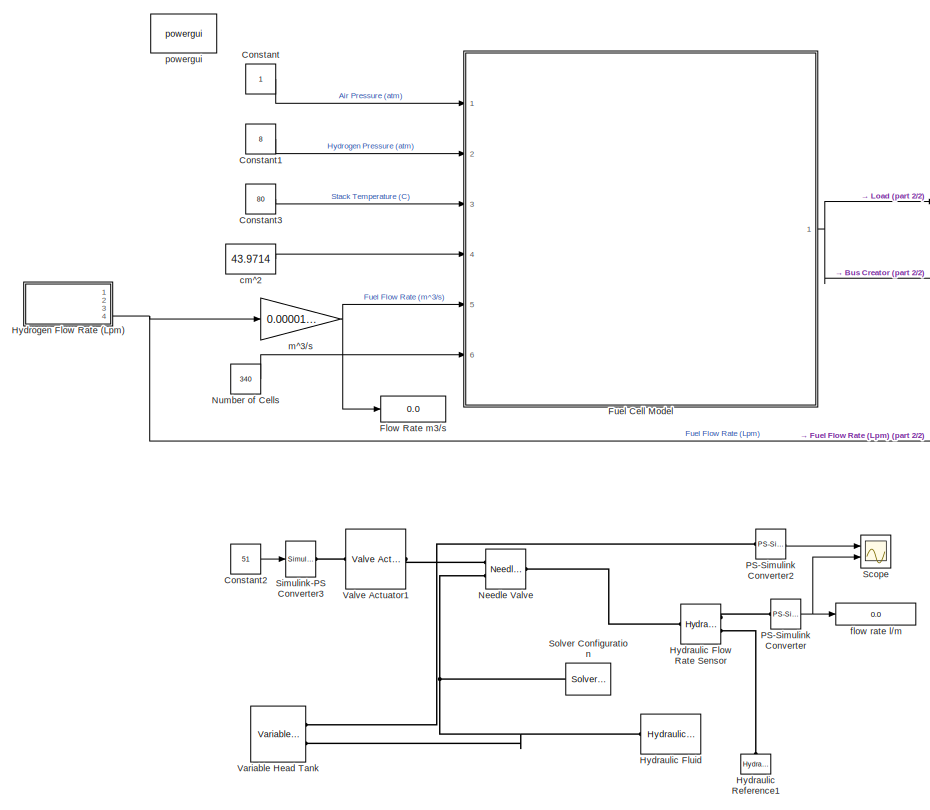
[diagram: root canvas - part 1/2, left side, full height]
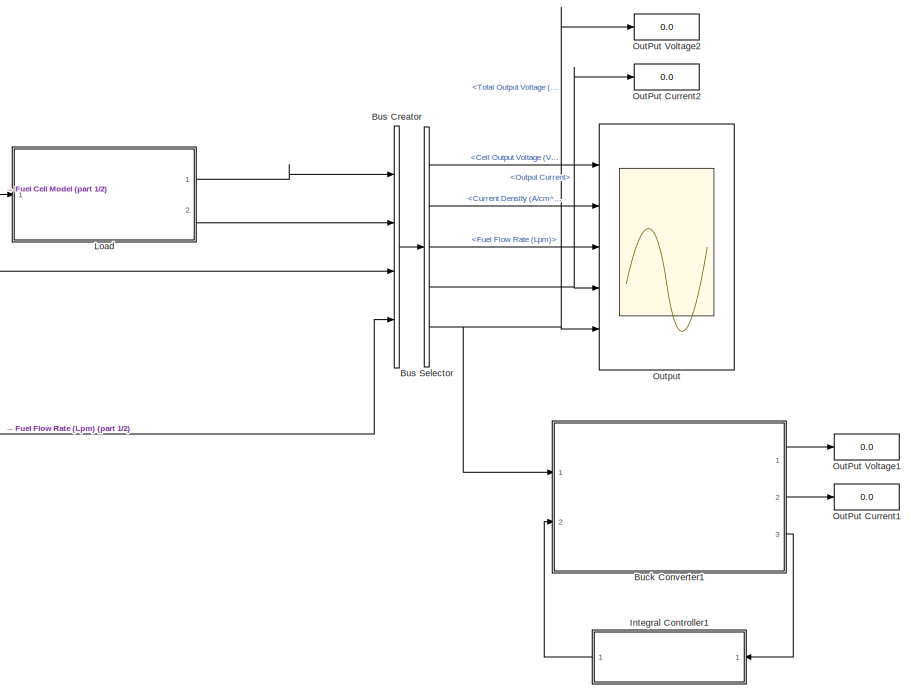
[diagram: root canvas - part 2/2, right side, full height]
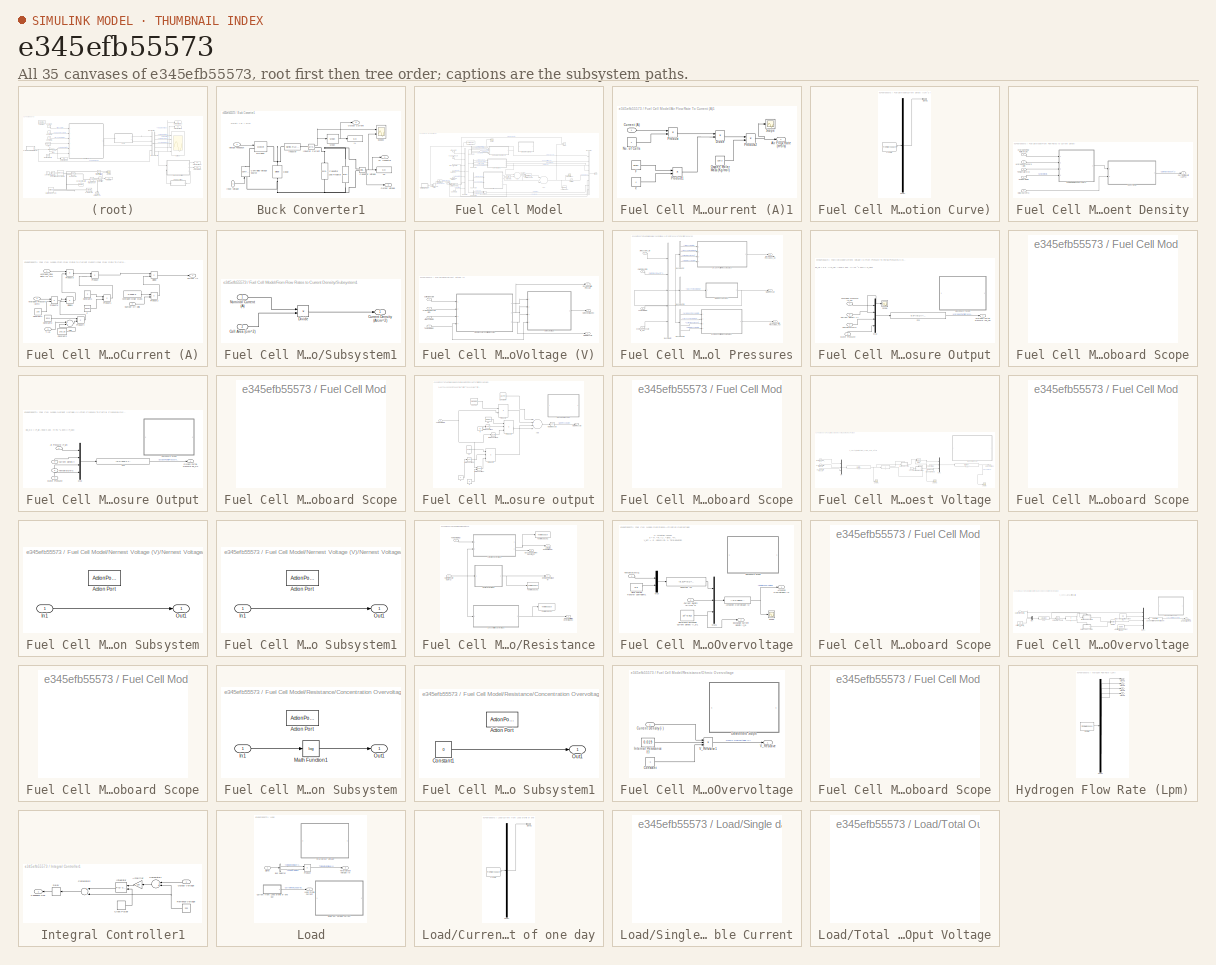
[diagram: thumbnail index - all 35 canvases of the model, root first then tree order]
MODEL slx_e345efb55573
KIND model
CONFIG AbsTol = auto
CONFIG FixedStep = 0.01
CONFIG MaxStep = auto
CONFIG MinStep = auto
CONFIG RelTol = 1e-3
CONFIG SampleTimeConstraint = Unconstrained
CONFIG Solver = ode23tb
CONFIG SolverMode = Auto
CONFIG SolverName = ode23tb
CONFIG StartTime = 0.0
CONFIG StopTime = 1
BLOCK [Display]  flow rate l//m
  Decimation = 1
  Ports = [1]
BLOCK [SubSystem] Buck Converter1
  Ports = [2, 3]
  RequestExecContextInheritance = off
BLOCK [Reference] Buck Converter1/Capacitor  REF=powerlib/Elements/Series RLC Branch
  BranchType = C
  Capacitance = 250e-6
  Inductance = 1e-3
  InitialCurrent = 0
  InitialVoltage = 0
  LConnTagsString = __new0
  Measurements = None
  Ports = [0, 0, 0, 0, 0, 1, 1]
  RConnTagsString = __new0
  Resistance = 1
  SetiL0 = off
  Setx0 = off
  SourceBlock = powerlib/Elements/Series RLC Branch
  SourceType = Series RLC Branch
BLOCK [Reference] Buck Converter1/Capacitor Voltage  REF=powerlib/Measurements/Voltage Measurement
  OutputType = Complex
  PSBequivalent = 0
  PhasorSimulation = off
  Ports = [0, 1, 0, 0, 0, 2]
  SourceBlock = powerlib/Measurements/Voltage Measurement
  SourceType = Voltage Measurement
BLOCK [Reference] Buck Converter1/Controlled Voltage Source  REF=powerlib/Electrical
Sources/Controlled Voltage Source
  Amplitude = 0
  Frequency = 0
  Initialize = on
  Measurements = None
  Phase = 0
  Ports = [1, 0, 0, 0, 0, 1, 1]
  SourceBlock = powerlib/Electrical\nSources/Controlled Voltage Source
  SourceType = Controlled Voltage Source
  Source_Type = AC
BLOCK [Reference] Buck Converter1/Diode  REF=powerlib/Power
Electronics/Diode
  Cs = 0
  IC = 0
  Lon = 0
  Measurements = off
  Ports = [0, 0, 0, 0, 0, 1, 1]
  Ron = 0.001
  Rs = 0
  SourceBlock = powerlib/Power\nElectronics/Diode
  SourceType = Diode
  UseSnubber = off
  Vf = 0.8
BLOCK [Display] Buck Converter1/IL
  Decimation = 1
  Ports = [1]
BLOCK [Reference] Buck Converter1/Inductor  REF=powerlib/Elements/Series RLC Branch
  BranchType = L
  Capacitance = 1e-6
  Inductance = 1.5e-3
  InitialCurrent = 0
  InitialVoltage = 0
  LConnTagsString = __new0
  Measurements = None
  Ports = [0, 0, 0, 0, 0, 1, 1]
  RConnTagsString = __new0
  Resistance = 1
  SetiL0 = off
  Setx0 = off
  SourceBlock = powerlib/Elements/Series RLC Branch
  SourceType = Series RLC Branch
BLOCK [Reference] Buck Converter1/Inductor Current  REF=powerlib/Measurements/Current Measurement
  OutputType = Complex
  PSBequivalent = 0
  PhasorSimulation = off
  Ports = [0, 1, 0, 0, 0, 1, 1]
  SourceBlock = powerlib/Measurements/Current Measurement
  SourceType = Current Measurement
BLOCK [Inport] Buck Converter1/Input Voltage
  IconDisplay = Port number
BLOCK [Reference] Buck Converter1/Load Resistor  REF=powerlib/Elements/Series RLC Branch
  BranchType = R
  Capacitance = 1e-6
  Inductance = 1e-3
  InitialCurrent = 0
  InitialVoltage = 0
  LConnTagsString = __new0
  Measurements = None
  Ports = [0, 0, 0, 0, 0, 1, 1]
  RConnTagsString = __new0
  Resistance = 2.8
  SetiL0 = off
  Setx0 = off
  SourceBlock = powerlib/Elements/Series RLC Branch
  SourceType = Series RLC Branch
BLOCK [Reference] Buck Converter1/MOSFET  REF=powerlib/Power
Electronics/Mosfet
  Cs = inf
  IC = 0
  Lon = 0
  Measurements = off
  Ports = [1, 0, 0, 0, 0, 1, 1]
  Rd = 0.01
  Ron = 0.1
  Rs = 1e5
  SourceBlock = powerlib/Power\nElectronics/Mosfet
  SourceType = Mosfet
  Vfd = 0
BLOCK [Reference] Buck Converter1/Mean  REF=powerlib_meascontrol/Measurements/Mean
  Freq = 5e3
  Ports = [1, 1]
  SourceBlock = powerlib_meascontrol/Measurements/Mean
  SourceType = Mean
  Ts = 0
  Vinit = 0
BLOCK [Outport] Buck Converter1/Output Current
  IconDisplay = Port number
  Port = 2
BLOCK [Outport] Buck Converter1/Output Voltage
  IconDisplay = Port number
  Port = 3
BLOCK [Scope] Buck Converter1/Scope2
  DataFormat = StructureWithTime
  Floating = off
  NumInputPorts = 2
  Ports = [2]
  SampleTime = 0
  SaveName = ScopeData5
  YMax = 5~5
  YMin = -5~-5
  ZoomMode = xonly
BLOCK [Display] Buck Converter1/VC
  Decimation = 1
  Ports = [1]
BLOCK [Outport] Buck Converter1/VC Inspector
  IconDisplay = Port number
BLOCK [Inport] Buck Converter1/Voltage Feedback
  IconDisplay = Port number
  Port = 2
BLOCK [BusCreator] Bus Creator
  DisplayOption = bar
  Ports = [4, 1]
BLOCK [BusSelector] Bus Selector
  OutputSignals = signal3.Cell Output Voltage (V),signal3.Current Density (A/cm^2),Fuel Flow Rate (Lpm),signal3.Output Current,Total Output Voltage (V)
  Ports = [1, 5]
BLOCK [Constant] Constant
BLOCK [Constant] Constant1
  Value = 8
BLOCK [Constant] Constant2
  Value = 51
  VectorParams1D = off
BLOCK [Constant] Constant3
  Value = 80
BLOCK [Display] Flow Rate m3//s
  Decimation = 1
  Ports = [1]
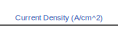
[diagram: Fuel Cell Model - part 1/3, top center region]
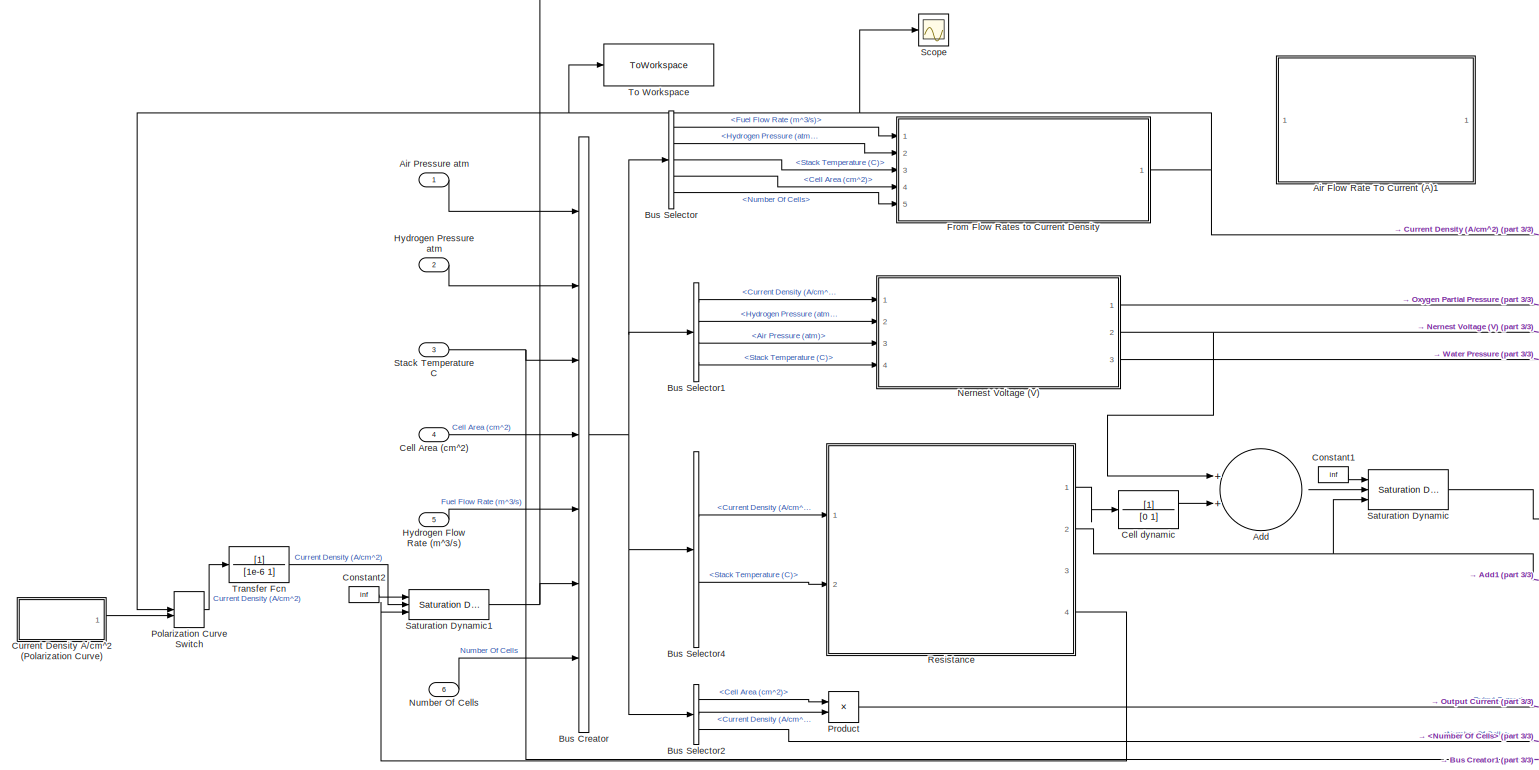
[diagram: Fuel Cell Model - part 2/3, center side, full height]
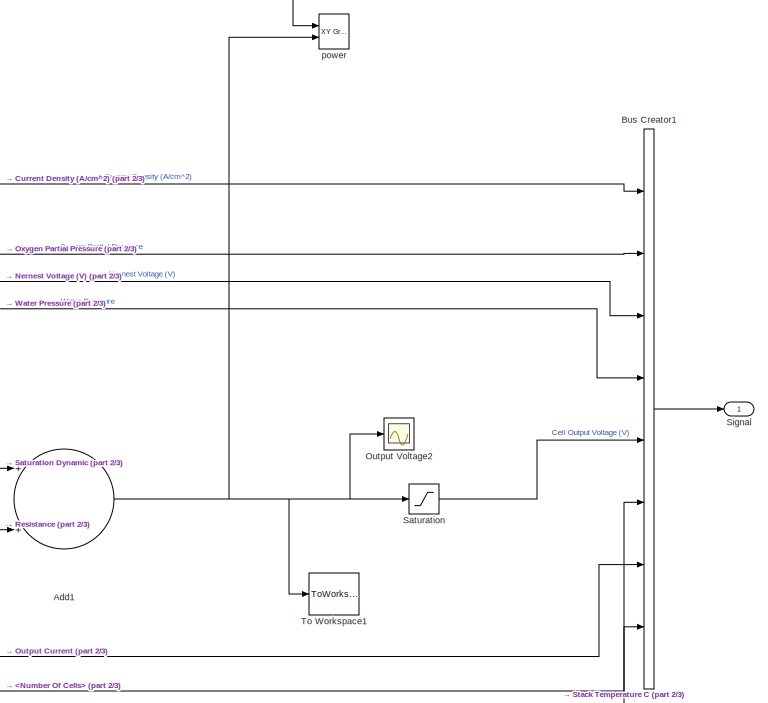
[diagram: Fuel Cell Model - part 3/3, right side, full height]
BLOCK [SubSystem] Fuel Cell Model
  Ports = [6, 1]
  RequestExecContextInheritance = off
BLOCK [Sum] Fuel Cell Model/Add
  InputSameDT = off
  OutDataTypeStr = Inherit: Inherit via internal rule
  Ports = [2, 1]
  SaturateOnIntegerOverflow = off
BLOCK [Sum] Fuel Cell Model/Add1
  InputSameDT = off
  OutDataTypeStr = Inherit: Inherit via internal rule
  Ports = [2, 1]
  SaturateOnIntegerOverflow = off
BLOCK [SubSystem] Fuel Cell Model/Air Flow Rate To Current (A)1
  Ports = [1, 1]
  RequestExecContextInheritance = off
BLOCK [Outport] Fuel Cell Model/Air Flow Rate To Current (A)1/Air Flow Rate (m^3//s)
  IconDisplay = Port number
BLOCK [Inport] Fuel Cell Model/Air Flow Rate To Current (A)1/Current (A)
  IconDisplay = Port number
BLOCK [Product] Fuel Cell Model/Air Flow Rate To Current (A)1/Divide
  InputSameDT = off
  Inputs = */
  OutDataTypeStr = Inherit: Inherit via internal rule
  Ports = [2, 1]
  RndMeth = Floor
  SaturateOnIntegerOverflow = off
BLOCK [Constant] Fuel Cell Model/Air Flow Rate To Current (A)1/F
  Value = 96487
BLOCK [Constant] Fuel Cell Model/Air Flow Rate To Current (A)1/No. of Cells
BLOCK [Constant] Fuel Cell Model/Air Flow Rate To Current (A)1/Oxygen Molar Mass (Kg//mol)
  Value = 32e-3
BLOCK [Product] Fuel Cell Model/Air Flow Rate To Current (A)1/Product
  InputSameDT = off
  OutDataTypeStr = Inherit: Inherit via internal rule
  Ports = [2, 1]
  RndMeth = Floor
  SaturateOnIntegerOverflow = off
BLOCK [Product] Fuel Cell Model/Air Flow Rate To Current (A)1/Product1
  InputSameDT = off
  OutDataTypeStr = Inherit: Inherit via internal rule
  Ports = [2, 1]
  RndMeth = Floor
  SaturateOnIntegerOverflow = off
BLOCK [Product] Fuel Cell Model/Air Flow Rate To Current (A)1/Product2
  InputSameDT = off
  OutDataTypeStr = Inherit: Inherit via internal rule
  Ports = [2, 1]
  RndMeth = Floor
  SaturateOnIntegerOverflow = off
BLOCK [Scope] Fuel Cell Model/Air Flow Rate To Current (A)1/Scope
  Floating = off
  NumInputPorts = 1
  Ports = [1]
  SaveName = ScopeData7
BLOCK [Constant] Fuel Cell Model/Air Flow Rate To Current (A)1/c
  Value = 4
BLOCK [Inport] Fuel Cell Model/Air Pressure atm
  IconDisplay = Port number
BLOCK [BusCreator] Fuel Cell Model/Bus Creator
  DisplayOption = bar
  Inputs = 7
  Ports = [7, 1]
BLOCK [BusCreator] Fuel Cell Model/Bus Creator1
  DisplayOption = bar
  Inputs = 8
  Ports = [8, 1]
BLOCK [BusSelector] Fuel Cell Model/Bus Selector
  OutputSignals = Fuel Flow Rate (m^3/s),Hydrogen Pressure (atm),Stack Temperature (C),Cell Area (cm^2),Number Of Cells
  Ports = [1, 5]
BLOCK [BusSelector] Fuel Cell Model/Bus Selector1
  OutputSignals = Current Density (A/cm^2),Hydrogen Pressure (atm),Air Pressure (atm),Stack Temperature (C)
  Ports = [1, 4]
BLOCK [BusSelector] Fuel Cell Model/Bus Selector2
  OutputSignals = Cell Area (cm^2),Current Density (A/cm^2),Number Of Cells
  Ports = [1, 3]
BLOCK [BusSelector] Fuel Cell Model/Bus Selector4
  OutputSignals = Current Density (A/cm^2),Stack Temperature (C)
  Ports = [1, 2]
BLOCK [Inport] Fuel Cell Model/Cell Area (cm^2)
  IconDisplay = Port number
  Port = 4
BLOCK [TransferFcn] Fuel Cell Model/Cell dynamic
  Denominator = [0 1]
BLOCK [Constant] Fuel Cell Model/Constant1
  Value = inf
BLOCK [Constant] Fuel Cell Model/Constant2
  Value = inf
BLOCK [SubSystem] Fuel Cell Model/Current Density A//cm^2 (Polarization Curve)
  ClipboardFcn = sigbuilder_block('clipboard');
  CloseFcn = sigbuilder_block('close');
  ContinueFcn = sigbuilder_block('continue');
  CopyFcn = sigbuilder_block('copy');
  DeleteFcn = sigbuilder_block('delete');
  LoadFcn = sigbuilder_block('load');
  MaskHideContents = on
  ModelCloseFcn = sigbuilder_block('modelClose');
  NameChangeFcn = sigbuilder_block('namechange');
  OpenFcn = sigbuilder_block('open',[437.6 199.2 550.4 400 ]);
  PauseFcn = sigbuilder_block('pause');
  Ports = [0, 1]
  PreSaveFcn = sigbuilder_block('preSave');
  RequestExecContextInheritance = off
  StartFcn = sigbuilder_block('start');
  StopFcn = sigbuilder_block('stop');
  Tag = STV Subsys
BLOCK [Demux] Fuel Cell Model/Current Density A//cm^2 (Polarization Curve)/Demux
  Outputs = 1
  Ports = [1, 1]
  Tag = STV Demux
BLOCK [FromWorkspace] Fuel Cell Model/Current Density A//cm^2 (Polarization Curve)/FromWs
  SampleTime = 0
  Tag = STV FromWs
  VariableName = tuvar
  ZeroCross = on
BLOCK [Outport] Fuel Cell Model/Current Density A//cm^2 (Polarization Curve)/Signal 1
  IconDisplay = Port number
  Tag = STV Outport
BLOCK [SubSystem] Fuel Cell Model/From Flow Rates to Current Density
  Ports = [5, 1]
  RequestExecContextInheritance = off
BLOCK [Inport] Fuel Cell Model/From Flow Rates to Current Density/Cell Area (cm^2)
  IconDisplay = Port number
  Port = 4
BLOCK [Outport] Fuel Cell Model/From Flow Rates to Current Density/Current Density (A//cm^2)
  IconDisplay = Port number
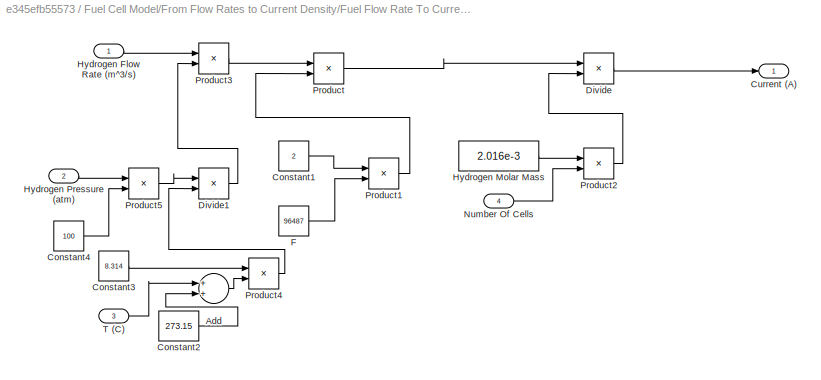
BLOCK [SubSystem] Fuel Cell Model/From Flow Rates to Current Density/Fuel Flow Rate To Current (A)
  Ports = [4, 1]
  RequestExecContextInheritance = off
BLOCK [Sum] Fuel Cell Model/From Flow Rates to Current Density/Fuel Flow Rate To Current (A)/Add
  InputSameDT = off
  OutDataTypeStr = Inherit: Inherit via internal rule
  Ports = [2, 1]
  SaturateOnIntegerOverflow = off
BLOCK [Constant] Fuel Cell Model/From Flow Rates to Current Density/Fuel Flow Rate To Current (A)/Constant1
  Value = 2
BLOCK [Constant] Fuel Cell Model/From Flow Rates to Current Density/Fuel Flow Rate To Current (A)/Constant2
  Value = 273.15
BLOCK [Constant] Fuel Cell Model/From Flow Rates to Current Density/Fuel Flow Rate To Current (A)/Constant3
  Value = 8.314
BLOCK [Constant] Fuel Cell Model/From Flow Rates to Current Density/Fuel Flow Rate To Current (A)/Constant4
  Value = 100
BLOCK [Outport] Fuel Cell Model/From Flow Rates to Current Density/Fuel Flow Rate To Current (A)/Current (A)
  IconDisplay = Port number
BLOCK [Product] Fuel Cell Model/From Flow Rates to Current Density/Fuel Flow Rate To Current (A)/Divide
  InputSameDT = off
  Inputs = */
  OutDataTypeStr = Inherit: Inherit via internal rule
  Ports = [2, 1]
  RndMeth = Floor
  SaturateOnIntegerOverflow = off
BLOCK [Product] Fuel Cell Model/From Flow Rates to Current Density/Fuel Flow Rate To Current (A)/Divide1
  InputSameDT = off
  Inputs = */
  OutDataTypeStr = Inherit: Inherit via internal rule
  Ports = [2, 1]
  RndMeth = Floor
  SaturateOnIntegerOverflow = off
BLOCK [Constant] Fuel Cell Model/From Flow Rates to Current Density/Fuel Flow Rate To Current (A)/F
  Value = 96487
BLOCK [Inport] Fuel Cell Model/From Flow Rates to Current Density/Fuel Flow Rate To Current (A)/Hydrogen Flow Rate (m^3//s)
  IconDisplay = Port number
BLOCK [Constant] Fuel Cell Model/From Flow Rates to Current Density/Fuel Flow Rate To Current (A)/Hydrogen Molar Mass
  Value = 2.016e-3
BLOCK [Inport] Fuel Cell Model/From Flow Rates to Current Density/Fuel Flow Rate To Current (A)/Hydrogen Pressure (atm)
  IconDisplay = Port number
  Port = 2
BLOCK [Inport] Fuel Cell Model/From Flow Rates to Current Density/Fuel Flow Rate To Current (A)/Number Of Cells
  IconDisplay = Port number
  Port = 4
BLOCK [Product] Fuel Cell Model/From Flow Rates to Current Density/Fuel Flow Rate To Current (A)/Product
  InputSameDT = off
  OutDataTypeStr = Inherit: Inherit via internal rule
  Ports = [2, 1]
  RndMeth = Floor
  SaturateOnIntegerOverflow = off
BLOCK [Product] Fuel Cell Model/From Flow Rates to Current Density/Fuel Flow Rate To Current (A)/Product1
  InputSameDT = off
  OutDataTypeStr = Inherit: Inherit via internal rule
  Ports = [2, 1]
  RndMeth = Floor
  SaturateOnIntegerOverflow = off
BLOCK [Product] Fuel Cell Model/From Flow Rates to Current Density/Fuel Flow Rate To Current (A)/Product2
  InputSameDT = off
  OutDataTypeStr = Inherit: Inherit via internal rule
  Ports = [2, 1]
  RndMeth = Floor
  SaturateOnIntegerOverflow = off
BLOCK [Product] Fuel Cell Model/From Flow Rates to Current Density/Fuel Flow Rate To Current (A)/Product3
  InputSameDT = off
  OutDataTypeStr = Inherit: Inherit via internal rule
  Ports = [2, 1]
  RndMeth = Floor
  SaturateOnIntegerOverflow = off
BLOCK [Product] Fuel Cell Model/From Flow Rates to Current Density/Fuel Flow Rate To Current (A)/Product4
  InputSameDT = off
  OutDataTypeStr = Inherit: Inherit via internal rule
  Ports = [2, 1]
  RndMeth = Floor
  SaturateOnIntegerOverflow = off
BLOCK [Product] Fuel Cell Model/From Flow Rates to Current Density/Fuel Flow Rate To Current (A)/Product5
  InputSameDT = off
  OutDataTypeStr = Inherit: Inherit via internal rule
  Ports = [2, 1]
  RndMeth = Floor
  SaturateOnIntegerOverflow = off
BLOCK [Inport] Fuel Cell Model/From Flow Rates to Current Density/Fuel Flow Rate To Current (A)/T (C)
  IconDisplay = Port number
  Port = 3
BLOCK [Inport] Fuel Cell Model/From Flow Rates to Current Density/Hydrogen Flow Rate (m^3//s)
  IconDisplay = Port number
BLOCK [Inport] Fuel Cell Model/From Flow Rates to Current Density/Hydrogen Pressure (atm)
  IconDisplay = Port number
  Port = 2
BLOCK [Inport] Fuel Cell Model/From Flow Rates to Current Density/Number Of Cells
  IconDisplay = Port number
  Port = 5
BLOCK [SubSystem] Fuel Cell Model/From Flow Rates to Current Density/Subsystem1
  Ports = [2, 1]
  RequestExecContextInheritance = off
BLOCK [Inport] Fuel Cell Model/From Flow Rates to Current Density/Subsystem1/Cell Area (cm^2)
  IconDisplay = Port number
  Port = 2
BLOCK [Outport] Fuel Cell Model/From Flow Rates to Current Density/Subsystem1/Current Density (A//cm^2)
  IconDisplay = Port number
BLOCK [Product] Fuel Cell Model/From Flow Rates to Current Density/Subsystem1/Divide
  InputSameDT = off
  Inputs = */
  OutDataTypeStr = Inherit: Inherit via internal rule
  Ports = [2, 1]
  RndMeth = Floor
  SaturateOnIntegerOverflow = off
BLOCK [Inport] Fuel Cell Model/From Flow Rates to Current Density/Subsystem1/Nominal Current (A)
  IconDisplay = Port number
BLOCK [Inport] Fuel Cell Model/From Flow Rates to Current Density/Temperature (C)
  IconDisplay = Port number
  Port = 3
BLOCK [Inport] Fuel Cell Model/Hydrogen Flow Rate (m^3//s)
  IconDisplay = Port number
  Port = 5
BLOCK [Inport] Fuel Cell Model/Hydrogen Pressure atm
  IconDisplay = Port number
  Port = 2
BLOCK [SubSystem] Fuel Cell Model/Nernest Voltage (V)
  Ports = [4, 3]
  RequestExecContextInheritance = off
BLOCK [Inport] Fuel Cell Model/Nernest Voltage (V)/Air Pressure (atm)
  IconDisplay = Port number
  Port = 3
BLOCK [Inport] Fuel Cell Model/Nernest Voltage (V)/Current Density (i)
  IconDisplay = Port number
BLOCK [SubSystem] Fuel Cell Model/Nernest Voltage (V)/From Pressure To Partial Pressures
  Ports = [4, 3]
  RequestExecContextInheritance = off
BLOCK [Inport] Fuel Cell Model/Nernest Voltage (V)/From Pressure To Partial Pressures/Air Pressure (P_air)
  IconDisplay = Port number
  Port = 3
BLOCK [BusCreator] Fuel Cell Model/Nernest Voltage (V)/From Pressure To Partial Pressures/Bus Creator
  DisplayOption = bar
  Inputs = 5
  Ports = [5, 1]
BLOCK [BusSelector] Fuel Cell Model/Nernest Voltage (V)/From Pressure To Partial Pressures/Bus Selector
  OutputSignals = Air Pressure (atm),Stack Temperature (C),Current Density (A/cm^2),Water Pressure(atm)
  Ports = [1, 4]
BLOCK [BusSelector] Fuel Cell Model/Nernest Voltage (V)/From Pressure To Partial Pressures/Bus Selector1
  OutputSignals = Stack Temperature (C)
  Ports = [1, 1]
BLOCK [BusSelector] Fuel Cell Model/Nernest Voltage (V)/From Pressure To Partial Pressures/Bus Selector2
  OutputSignals = Hydrogen Pressure (atm),Stack Temperature (C),Current Density (A/cm^2),Water Pressure(atm)
  Ports = [1, 4]
BLOCK [Inport] Fuel Cell Model/Nernest Voltage (V)/From Pressure To Partial Pressures/Current Density (i )
  IconDisplay = Port number
BLOCK [Outport] Fuel Cell Model/Nernest Voltage (V)/From Pressure To Partial Pressures/Hydrogen Partial Pressure (pp_H2)
  IconDisplay = Port number
BLOCK [SubSystem] Fuel Cell Model/Nernest Voltage (V)/From Pressure To Partial Pressures/Hydrogen Partial Pressure Output
  Ports = [4, 1]
  RequestExecContextInheritance = off
BLOCK [Inport] Fuel Cell Model/Nernest Voltage (V)/From Pressure To Partial Pressures/Hydrogen Partial Pressure Output/Current Density (i )
  IconDisplay = Port number
  Port = 3
BLOCK [SubSystem] Fuel Cell Model/Nernest Voltage (V)/From Pressure To Partial Pressures/Hydrogen Partial Pressure Output/Dashboard Scope
  DialogController = hmiCreateDDGDialog
  IsWebBlock = on
  MaskHideContents = on
  Ports = []
  RequestExecContextInheritance = off
BLOCK [Fcn] Fuel Cell Model/Nernest Voltage (V)/From Pressure To Partial Pressures/Hydrogen Partial Pressure Output/Fcn
  Expr = 0.5*((u(1))/(exp(1.653*u(2)/((u(3)+273.15)^1.334)))-u(4))
BLOCK [Outport] Fuel Cell Model/Nernest Voltage (V)/From Pressure To Partial Pressures/Hydrogen Partial Pressure Output/Hydrogen Partial Pressure (pp_H2)
  IconDisplay = Port number
BLOCK [Inport] Fuel Cell Model/Nernest Voltage (V)/From Pressure To Partial Pressures/Hydrogen Partial Pressure Output/Hydrogen Pressure (P_H2)
  IconDisplay = Port number
BLOCK [Mux] Fuel Cell Model/Nernest Voltage (V)/From Pressure To Partial Pressures/Hydrogen Partial Pressure Output/Mux
  DisplayOption = bar
  Ports = [4, 1]
BLOCK [Scope] Fuel Cell Model/Nernest Voltage (V)/From Pressure To Partial Pressures/Hydrogen Partial Pressure Output/Scope
  Floating = off
  NumInputPorts = 1
  Ports = [1]
  SaveName = ScopeData2
BLOCK [Inport] Fuel Cell Model/Nernest Voltage (V)/From Pressure To Partial Pressures/Hydrogen Partial Pressure Output/Temperature//C
  IconDisplay = Port number
  Port = 2
BLOCK [Inport] Fuel Cell Model/Nernest Voltage (V)/From Pressure To Partial Pressures/Hydrogen Partial Pressure Output/Water Pressure
  IconDisplay = Port number
  Port = 4
BLOCK [Inport] Fuel Cell Model/Nernest Voltage (V)/From Pressure To Partial Pressures/Hydrogen Pressure (P_H2)
  IconDisplay = Port number
  Port = 2
BLOCK [SubSystem] Fuel Cell Model/Nernest Voltage (V)/From Pressure To Partial Pressures/Oxygen Partial Pressure Output
  Ports = [4, 1]
  RequestExecContextInheritance = off
BLOCK [Inport] Fuel Cell Model/Nernest Voltage (V)/From Pressure To Partial Pressures/Oxygen Partial Pressure Output/Air Pressure (P_air)
  IconDisplay = Port number
BLOCK [Inport] Fuel Cell Model/Nernest Voltage (V)/From Pressure To Partial Pressures/Oxygen Partial Pressure Output/Current Density//i
  IconDisplay = Port number
  Port = 3
BLOCK [SubSystem] Fuel Cell Model/Nernest Voltage (V)/From Pressure To Partial Pressures/Oxygen Partial Pressure Output/Dashboard Scope
  DialogController = hmiCreateDDGDialog
  IsWebBlock = on
  MaskHideContents = on
  Ports = []
  RequestExecContextInheritance = off
BLOCK [Fcn] Fuel Cell Model/Nernest Voltage (V)/From Pressure To Partial Pressures/Oxygen Partial Pressure Output/Fcn
  Expr = (u(1)/exp(4.192 *u(2)/((u(3)+273.15)^1.334)))-u(4)
BLOCK [Mux] Fuel Cell Model/Nernest Voltage (V)/From Pressure To Partial Pressures/Oxygen Partial Pressure Output/Mux
  DisplayOption = bar
  Ports = [4, 1]
BLOCK [Outport] Fuel Cell Model/Nernest Voltage (V)/From Pressure To Partial Pressures/Oxygen Partial Pressure Output/Oxygen Partial Pressure pp_O2
  IconDisplay = Port number
BLOCK [Inport] Fuel Cell Model/Nernest Voltage (V)/From Pressure To Partial Pressures/Oxygen Partial Pressure Output/Temperature//C
  IconDisplay = Port number
  Port = 2
BLOCK [Inport] Fuel Cell Model/Nernest Voltage (V)/From Pressure To Partial Pressures/Oxygen Partial Pressure Output/Water Pressure
  IconDisplay = Port number
  Port = 4
BLOCK [Outport] Fuel Cell Model/Nernest Voltage (V)/From Pressure To Partial Pressures/Oxygen Partial Pressure pp_O2
  IconDisplay = Port number
  Port = 2
BLOCK [Inport] Fuel Cell Model/Nernest Voltage (V)/From Pressure To Partial Pressures/Temperature//C
  IconDisplay = Port number
  Port = 4
BLOCK [Outport] Fuel Cell Model/Nernest Voltage (V)/From Pressure To Partial Pressures/Water Pressure
  IconDisplay = Port number
  Port = 3
BLOCK [SubSystem] Fuel Cell Model/Nernest Voltage (V)/From Pressure To Partial Pressures/Water Pressure output
  Ports = [1, 1]
  RequestExecContextInheritance = off
BLOCK [Constant] Fuel Cell Model/Nernest Voltage (V)/From Pressure To Partial Pressures/Water Pressure output/-1
  Value = -7
BLOCK [Constant] Fuel Cell Model/Nernest Voltage (V)/From Pressure To Partial Pressures/Water Pressure output/-2
  Value = 3
BLOCK [Constant] Fuel Cell Model/Nernest Voltage (V)/From Pressure To Partial Pressures/Water Pressure output/-5
  Value = -5
BLOCK [Constant] Fuel Cell Model/Nernest Voltage (V)/From Pressure To Partial Pressures/Water Pressure output/0.02953
  Value = 0.02953
BLOCK [Constant] Fuel Cell Model/Nernest Voltage (V)/From Pressure To Partial Pressures/Water Pressure output/0.1
  Value = 9.1837
BLOCK [Constant] Fuel Cell Model/Nernest Voltage (V)/From Pressure To Partial Pressures/Water Pressure output/0.2
  Value = 1.4454
BLOCK [Sum] Fuel Cell Model/Nernest Voltage (V)/From Pressure To Partial Pressures/Water Pressure output/Add
  InputSameDT = off
  Inputs = +++-
  OutDataTypeStr = Inherit: Inherit via internal rule
  Ports = [4, 1]
  SaturateOnIntegerOverflow = off
BLOCK [Constant] Fuel Cell Model/Nernest Voltage (V)/From Pressure To Partial Pressures/Water Pressure output/Constant4
  Value = -2.1794
BLOCK [SubSystem] Fuel Cell Model/Nernest Voltage (V)/From Pressure To Partial Pressures/Water Pressure output/Dashboard Scope
  DialogController = hmiCreateDDGDialog
  IsWebBlock = on
  MaskHideContents = on
  Ports = []
  RequestExecContextInheritance = off
BLOCK [Math] Fuel Cell Model/Nernest Voltage (V)/From Pressure To Partial Pressures/Water Pressure output/Math Function4
  Operator = 10^u
  Ports = [1, 1]
BLOCK [Math] Fuel Cell Model/Nernest Voltage (V)/From Pressure To Partial Pressures/Water Pressure output/Math Function5
  Operator = square
  Ports = [1, 1]
BLOCK [Math] Fuel Cell Model/Nernest Voltage (V)/From Pressure To Partial Pressures/Water Pressure output/Math Function6
  Operator = 10^u
  Ports = [1, 1]
BLOCK [Math] Fuel Cell Model/Nernest Voltage (V)/From Pressure To Partial Pressures/Water Pressure output/Math Function7
  Operator = pow
  Ports = [2, 1]
BLOCK [Product] Fuel Cell Model/Nernest Voltage (V)/From Pressure To Partial Pressures/Water Pressure output/Product1
  InputSameDT = off
  Inputs = 3
  OutDataTypeStr = Inherit: Inherit via internal rule
  Ports = [3, 1]
  RndMeth = Floor
  SaturateOnIntegerOverflow = off
BLOCK [Product] Fuel Cell Model/Nernest Voltage (V)/From Pressure To Partial Pressures/Water Pressure output/Product2
  InputSameDT = off
  OutDataTypeStr = Inherit: Inherit via internal rule
  Ports = [2, 1]
  RndMeth = Floor
  SaturateOnIntegerOverflow = off
BLOCK [Product] Fuel Cell Model/Nernest Voltage (V)/From Pressure To Partial Pressures/Water Pressure output/Product3
  InputSameDT = off
  Inputs = 3
  OutDataTypeStr = Inherit: Inherit via internal rule
  Ports = [3, 1]
  RndMeth = Floor
  SaturateOnIntegerOverflow = off
BLOCK [Inport] Fuel Cell Model/Nernest Voltage (V)/From Pressure To Partial Pressures/Water Pressure output/Temperature//C
  IconDisplay = Port number
BLOCK [Outport] Fuel Cell Model/Nernest Voltage (V)/From Pressure To Partial Pressures/Water Pressure output/Water Pressure
  IconDisplay = Port number
BLOCK [Math] Fuel Cell Model/Nernest Voltage (V)/From Pressure To Partial Pressures/Water Pressure output/water  pressure 
  Operator = 10^u
  Ports = [1, 1]
BLOCK [Inport] Fuel Cell Model/Nernest Voltage (V)/Hydrogen Pressure (atm)
  IconDisplay = Port number
  Port = 2
BLOCK [SubSystem] Fuel Cell Model/Nernest Voltage (V)/Nernest Voltage
  Ports = [4, 1]
  RequestExecContextInheritance = off
BLOCK [Outport] Fuel Cell Model/Nernest Voltage (V)/Nernest Voltage (V)
  IconDisplay = Port number
  Port = 2
BLOCK [Constant] Fuel Cell Model/Nernest Voltage (V)/Nernest Voltage/Constant1
BLOCK [SubSystem] Fuel Cell Model/Nernest Voltage (V)/Nernest Voltage/Dashboard Scope
  DialogController = hmiCreateDDGDialog
  IsWebBlock = on
  MaskHideContents = on
  Ports = []
  RequestExecContextInheritance = off
BLOCK [Fcn] Fuel Cell Model/Nernest Voltage (V)/Nernest Voltage/Fcn
  Expr = u(1)/(u(2)*(u(3)^0.5))
BLOCK [Fcn] Fuel Cell Model/Nernest Voltage (V)/Nernest Voltage/Fcn1
  Expr = (-u(3)/(2*96485))-((8.314*(u(2)+273.15))*log(u(1)))/(2*96485)
BLOCK [Constant] Fuel Cell Model/Nernest Voltage (V)/Nernest Voltage/Gibbs Value (J//mol)
  Value = -228170
BLOCK [Inport] Fuel Cell Model/Nernest Voltage (V)/Nernest Voltage/Hydrogen Partial Pressure
  IconDisplay = Port number
BLOCK [If] Fuel Cell Model/Nernest Voltage (V)/Nernest Voltage/If
  Ports = [1, 2]
BLOCK [SubSystem] Fuel Cell Model/Nernest Voltage (V)/Nernest Voltage/If Action Subsystem
  Ports = [1, 1, 0, 0, 0, 0, 0, 1]
  RequestExecContextInheritance = off
  TreatAsAtomicUnit = on
BLOCK [ActionPort] Fuel Cell Model/Nernest Voltage (V)/Nernest Voltage/If Action Subsystem/Action Port
  ActionType = then
BLOCK [Inport] Fuel Cell Model/Nernest Voltage (V)/Nernest Voltage/If Action Subsystem/In1
  IconDisplay = Port number
BLOCK [Outport] Fuel Cell Model/Nernest Voltage (V)/Nernest Voltage/If Action Subsystem/Out1
  IconDisplay = Port number
BLOCK [SubSystem] Fuel Cell Model/Nernest Voltage (V)/Nernest Voltage/If Action Subsystem1
  Ports = [1, 1, 0, 0, 0, 0, 0, 1]
  RequestExecContextInheritance = off
  TreatAsAtomicUnit = on
BLOCK [ActionPort] Fuel Cell Model/Nernest Voltage (V)/Nernest Voltage/If Action Subsystem1/Action Port
  ActionType = else
BLOCK [Inport] Fuel Cell Model/Nernest Voltage (V)/Nernest Voltage/If Action Subsystem1/In1
  IconDisplay = Port number
BLOCK [Outport] Fuel Cell Model/Nernest Voltage (V)/Nernest Voltage/If Action Subsystem1/Out1
  IconDisplay = Port number
BLOCK [Merge] Fuel Cell Model/Nernest Voltage (V)/Nernest Voltage/Merge
  Ports = [2, 1]
BLOCK [Mux] Fuel Cell Model/Nernest Voltage (V)/Nernest Voltage/Mux
  DisplayOption = bar
  Inputs = 3
  Ports = [3, 1]
BLOCK [Mux] Fuel Cell Model/Nernest Voltage (V)/Nernest Voltage/Mux1
  DisplayOption = bar
  Inputs = 3
  Ports = [3, 1]
BLOCK [Outport] Fuel Cell Model/Nernest Voltage (V)/Nernest Voltage/Nernest Voltage1
  IconDisplay = Port number
BLOCK [Inport] Fuel Cell Model/Nernest Voltage (V)/Nernest Voltage/Oxygen Partial Pressure
  IconDisplay = Port number
  Port = 2
BLOCK [Scope] Fuel Cell Model/Nernest Voltage (V)/Nernest Voltage/Scope
  Floating = off
  NumInputPorts = 1
  Ports = [1]
  SaveName = ScopeData13
  YMax = 1.18241
  YMin = 1.18241
BLOCK [Scope] Fuel Cell Model/Nernest Voltage (V)/Nernest Voltage/Scope1
  Floating = off
  NumInputPorts = 1
  Ports = [1]
  SaveName = ScopeData14
  YMax = 38815.2
  YMin = 35118.6
BLOCK [Scope] Fuel Cell Model/Nernest Voltage (V)/Nernest Voltage/Scope2
  Floating = off
  NumInputPorts = 1
  Ports = [1]
  SaveName = ScopeData15
  YMax = 38815.2
  YMin = 35118.6
BLOCK [Inport] Fuel Cell Model/Nernest Voltage (V)/Nernest Voltage/Temperature//C
  IconDisplay = Port number
  Port = 4
BLOCK [Inport] Fuel Cell Model/Nernest Voltage (V)/Nernest Voltage/Water Pressure (P_H2O)
  IconDisplay = Port number
  Port = 3
BLOCK [Outport] Fuel Cell Model/Nernest Voltage (V)/Oxygen Partial Pressure
  IconDisplay = Port number
BLOCK [Inport] Fuel Cell Model/Nernest Voltage (V)/Temperature (C)
  IconDisplay = Port number
  Port = 4
BLOCK [Outport] Fuel Cell Model/Nernest Voltage (V)/Water Pressure
  IconDisplay = Port number
  Port = 3
BLOCK [Inport] Fuel Cell Model/Number Of Cells
  IconDisplay = Port number
  Port = 6
BLOCK [Scope] Fuel Cell Model/Output Voltage2
  Decimation = 2
  Floating = off
  LimitDataPoints = off
  NumInputPorts = 1
  Ports = [1]
  YMax = 0.988269
  YMin = 0.894149
BLOCK [ManualSwitch] Fuel Cell Model/Polarization Curve Switch
BLOCK [Product] Fuel Cell Model/Product
  InputSameDT = off
  OutDataTypeStr = Inherit: Inherit via internal rule
  Ports = [2, 1]
  RndMeth = Floor
  SaturateOnIntegerOverflow = off
BLOCK [SubSystem] Fuel Cell Model/Resistance
  Ports = [2, 4]
  RequestExecContextInheritance = off
BLOCK [SubSystem] Fuel Cell Model/Resistance/Activation Overvoltage
  Ports = [2, 2]
  RequestExecContextInheritance = off
BLOCK [Outport] Fuel Cell Model/Resistance/Activation Overvoltage (V)
  IconDisplay = Port number
BLOCK [Fcn] Fuel Cell Model/Resistance/Activation Overvoltage/Activation Overvoltage (V)
  Expr = (-u(1)*log10(u(2)/u(3)))
BLOCK [Outport] Fuel Cell Model/Resistance/Activation Overvoltage/Activation Overvoltage1 (V)
  IconDisplay = Port number
BLOCK [Constant] Fuel Cell Model/Resistance/Activation Overvoltage/Alpha Charge Transfer Coefficient1
  Value = 0.5
BLOCK [Fcn] Fuel Cell Model/Resistance/Activation Overvoltage/Constant (b)
  Expr = (8.314*(u(1)+273.15))/(2*u(2)*96485)
BLOCK [Inport] Fuel Cell Model/Resistance/Activation Overvoltage/Current Density (i)(A//cm^2)
  IconDisplay = Port number
  Port = 2
BLOCK [SubSystem] Fuel Cell Model/Resistance/Activation Overvoltage/Dashboard Scope
  DialogController = hmiCreateDDGDialog
  IsWebBlock = on
  MaskHideContents = on
  Ports = []
  RequestExecContextInheritance = off
BLOCK [Outport] Fuel Cell Model/Resistance/Activation Overvoltage/Exchange Current Density (i_0)
  IconDisplay = Port number
  Port = 2
BLOCK [Mux] Fuel Cell Model/Resistance/Activation Overvoltage/Mux
  DisplayOption = bar
  Inputs = 2
  Ports = [2, 1]
BLOCK [Mux] Fuel Cell Model/Resistance/Activation Overvoltage/Mux1
  DisplayOption = bar
  Inputs = 3
  Ports = [3, 1]
BLOCK [Constant] Fuel Cell Model/Resistance/Activation Overvoltage/Reference Exchange Current Density (I_0)1
  Value = 10^-6.912
BLOCK [Scope] Fuel Cell Model/Resistance/Activation Overvoltage/Scope
  Floating = off
  NumInputPorts = 1
  Ports = [1]
  SaveName = ScopeData41
BLOCK [Inport] Fuel Cell Model/Resistance/Activation Overvoltage/Temperature//C1
  IconDisplay = Port number
BLOCK [SubSystem] Fuel Cell Model/Resistance/Concentration Overvoltage
  Ports = [1, 1]
  RequestExecContextInheritance = off
BLOCK [Outport] Fuel Cell Model/Resistance/Concentration Overvoltage (V)
  IconDisplay = Port number
  Port = 3
BLOCK [Constant] Fuel Cell Model/Resistance/Concentration Overvoltage/Amplification Constant Alpha2
  Value = 0.085
BLOCK [Reference] Fuel Cell Model/Resistance/Concentration Overvoltage/Compare To Zero  REF=simulink/Logic and Bit
Operations/Compare
To Zero
  OutDataTypeStr = boolean
  Ports = [1, 1]
  SourceBlock = simulink/Logic and Bit\nOperations/Compare\nTo Zero
  SourceType = Compare To Zero
  ZeroCross = on
  relop = <=
BLOCK [Fcn] Fuel Cell Model/Resistance/Concentration Overvoltage/Concentration Overvoltage (V)
  Expr = (u(1)^u(2))*u(3)*u(4)
BLOCK [Outport] Fuel Cell Model/Resistance/Concentration Overvoltage/Concentration Overvoltage1 (V) 
  IconDisplay = Port number
BLOCK [Inport] Fuel Cell Model/Resistance/Concentration Overvoltage/Current Density (i)1
  IconDisplay = Port number
BLOCK [SubSystem] Fuel Cell Model/Resistance/Concentration Overvoltage/Dashboard Scope
  DialogController = hmiCreateDDGDialog
  IsWebBlock = on
  MaskHideContents = on
  Ports = []
  RequestExecContextInheritance = off
BLOCK [Fcn] Fuel Cell Model/Resistance/Concentration Overvoltage/Fcn
  Expr = 1-(u(1)/u(2))
BLOCK [If] Fuel Cell Model/Resistance/Concentration Overvoltage/If
  IfExpression = u1 == 0
  Ports = [1, 2]
BLOCK [SubSystem] Fuel Cell Model/Resistance/Concentration Overvoltage/If Action Subsystem
  Ports = [1, 1, 0, 0, 0, 0, 0, 1]
  RequestExecContextInheritance = off
  TreatAsAtomicUnit = on
BLOCK [ActionPort] Fuel Cell Model/Resistance/Concentration Overvoltage/If Action Subsystem/Action Port
  ActionType = then
BLOCK [Inport] Fuel Cell Model/Resistance/Concentration Overvoltage/If Action Subsystem/In1
  IconDisplay = Port number
BLOCK [Math] Fuel Cell Model/Resistance/Concentration Overvoltage/If Action Subsystem/Math Function1
  Operator = log
  OutputSignalType = real
  Ports = [1, 1]
BLOCK [Outport] Fuel Cell Model/Resistance/Concentration Overvoltage/If Action Subsystem/Out1
  IconDisplay = Port number
BLOCK [SubSystem] Fuel Cell Model/Resistance/Concentration Overvoltage/If Action Subsystem1
  Ports = [0, 1, 0, 0, 0, 0, 0, 1]
  RequestExecContextInheritance = off
  TreatAsAtomicUnit = on
BLOCK [ActionPort] Fuel Cell Model/Resistance/Concentration Overvoltage/If Action Subsystem1/Action Port
  ActionType = else
BLOCK [Constant] Fuel Cell Model/Resistance/Concentration Overvoltage/If Action Subsystem1/Constant1
  Value = 0
BLOCK [Outport] Fuel Cell Model/Resistance/Concentration Overvoltage/If Action Subsystem1/Out1
  IconDisplay = Port number
BLOCK [Constant] Fuel Cell Model/Resistance/Concentration Overvoltage/Limiting Current (i_L)1
  Value = 1.4
BLOCK [Constant] Fuel Cell Model/Resistance/Concentration Overvoltage/Mass Transport Constant (K)1
  Value = 1.1
BLOCK [Merge] Fuel Cell Model/Resistance/Concentration Overvoltage/Merge
  InitialOutput = 1
  Ports = [2, 1]
BLOCK [Mux] Fuel Cell Model/Resistance/Concentration Overvoltage/Mux
  DisplayOption = bar
  Inputs = 2
  Ports = [2, 1]
BLOCK [Mux] Fuel Cell Model/Resistance/Concentration Overvoltage/Mux1
  DisplayOption = bar
  Ports = [4, 1]
BLOCK [Inport] Fuel Cell Model/Resistance/Current Density (A//cm^2)
  IconDisplay = Port number
BLOCK [Outport] Fuel Cell Model/Resistance/Exchange Current Density (i_0)
  IconDisplay = Port number
  Port = 4
BLOCK [SubSystem] Fuel Cell Model/Resistance/Ohmic Overvoltage
  Ports = [1, 1]
  RequestExecContextInheritance = off
BLOCK [Outport] Fuel Cell Model/Resistance/Ohmic Overvoltage (V)
  IconDisplay = Port number
  Port = 2
BLOCK [Constant] Fuel Cell Model/Resistance/Ohmic Overvoltage/Constant
  Value = -1
BLOCK [Inport] Fuel Cell Model/Resistance/Ohmic Overvoltage/Current Density (i )
  IconDisplay = Port number
BLOCK [SubSystem] Fuel Cell Model/Resistance/Ohmic Overvoltage/Dashboard Scope
  DialogController = hmiCreateDDGDialog
  IsWebBlock = on
  MaskHideContents = on
  Ports = []
  RequestExecContextInheritance = off
BLOCK [Constant] Fuel Cell Model/Resistance/Ohmic Overvoltage/Internal Resistance (r)
  Value = 0.019
BLOCK [Outport] Fuel Cell Model/Resistance/Ohmic Overvoltage/V_Resistive
  IconDisplay = Port number
BLOCK [Product] Fuel Cell Model/Resistance/Ohmic Overvoltage/V_Resistive1
  InputSameDT = off
  Inputs = 3
  OutDataTypeStr = Inherit: Inherit via internal rule
  Ports = [3, 1]
  RndMeth = Floor
  SaturateOnIntegerOverflow = off
BLOCK [Inport] Fuel Cell Model/Resistance/Temperature (C)
  IconDisplay = Port number
  Port = 2
BLOCK [ToWorkspace] Fuel Cell Model/Resistance/To Workspace1
  MaxDataPoints = inf
  Ports = [1]
  SampleTime = -1
  Save2DSignal = 2-D array (concatenate along first dimension)
  VariableName = V_Concentration
BLOCK [ToWorkspace] Fuel Cell Model/Resistance/To Workspace2
  MaxDataPoints = inf
  Ports = [1]
  SampleTime = -1
  Save2DSignal = 2-D array (concatenate along first dimension)
  VariableName = V_Activation
BLOCK [ToWorkspace] Fuel Cell Model/Resistance/To Workspace3
  MaxDataPoints = inf
  Ports = [1]
  SampleTime = -1
  Save2DSignal = 2-D array (concatenate along first dimension)
  VariableName = V_Ohmic
BLOCK [Saturate] Fuel Cell Model/Saturation
  InputPortMap = u0
  LowerLimit = 0
  Ports = [1, 1]
  UpperLimit = inf
BLOCK [Reference] Fuel Cell Model/Saturation Dynamic  REF=simulink/Discontinuities/Saturation
Dynamic
  DoSatur = off
  LockScale = off
  OutDataType = sfix(16)
  OutDataTypeStr = Inherit: Same as second input
  OutMax = []
  OutMin = []
  OutScaling = 2^-10
  OutputDataTypeScalingMode = Same as second input
  Ports = [3, 1]
  RndMeth = Floor
  SourceBlock = simulink/Discontinuities/Saturation\nDynamic
  SourceType = Saturation Dynamic
BLOCK [Reference] Fuel Cell Model/Saturation Dynamic1  REF=simulink/Discontinuities/Saturation
Dynamic
  DoSatur = off
  LockScale = off
  OutDataType = sfix(16)
  OutDataTypeStr = Inherit: Same as second input
  OutMax = []
  OutMin = []
  OutScaling = 2^-10
  OutputDataTypeScalingMode = Same as second input
  Ports = [3, 1]
  RndMeth = Floor
  SourceBlock = simulink/Discontinuities/Saturation\nDynamic
  SourceType = Saturation Dynamic
BLOCK [Scope] Fuel Cell Model/Scope
  Floating = off
  NumInputPorts = 1
  Ports = [1]
  SaveName = ScopeData1
  YMax = 1.71501
  YMin = 1.55167
BLOCK [Outport] Fuel Cell Model/Signal
  IconDisplay = Port number
BLOCK [Inport] Fuel Cell Model/Stack Temperature C
  IconDisplay = Port number
  Port = 3
BLOCK [ToWorkspace] Fuel Cell Model/To Workspace
  MaxDataPoints = inf
  Ports = [1]
  SampleTime = -1
  Save2DSignal = 2-D array (concatenate along first dimension)
  VariableName = Current_Density
BLOCK [ToWorkspace] Fuel Cell Model/To Workspace1
  MaxDataPoints = inf
  Ports = [1]
  SampleTime = -1
  Save2DSignal = 2-D array (concatenate along first dimension)
  VariableName = Voltage
BLOCK [TransferFcn] Fuel Cell Model/Transfer Fcn
  Denominator = [1e-6 1]
BLOCK [Reference] Fuel Cell Model/power  REF=simulink/Sinks/XY Graph
  Ports = [2]
  SourceBlock = simulink/Sinks/XY Graph
  SourceType = XY scope.
  st = 0
  xmax = 8
  xmin = 0
  ymax = 1.4
  ymin = 0.0
BLOCK [Reference] Hydraulic Flow Rate Sensor  REF=fl_lib/Hydraulic/Hydraulic Sensors/Hydraulic Flow Rate
Sensor
  ClassName = flow_rate
  ComponentPath = foundation.hydraulic.sensors.flow_rate
  ComponentVariantNames = flow_rate
  ComponentVariants = foundation.hydraulic.sensors.flow_rate
  LogSimulationData = off
  Ports = [0, 0, 0, 0, 0, 1, 2]
  SchemaVersion = 1
  SourceBlock = fl_lib/Hydraulic/Hydraulic Sensors/Hydraulic Flow Rate\nSensor
  SourceFile = foundation.hydraulic.sensors.flow_rate
  SourceType = Hydraulic Flow Rate\nSensor
BLOCK [Reference] Hydraulic Fluid  REF=sh_lib/Hydraulic Utilities/Hydraulic Fluid
  ClassName = hydraulic_fluid
  ComponentPath = sh.utilities.hydraulic_fluid
  ComponentVariantNames = hydraulic_fluid
  ComponentVariants = sh.utilities.hydraulic_fluid
  DataSource = 1
  DataSource_unit = 1
  LogSimulationData = off
  Ports = [0, 0, 0, 0, 0, 0, 1]
  SchemaVersion = 1
  SelFluid = 3
  SelFluid_unit = 1
  SourceBlock = sh_lib/Hydraulic Utilities/Hydraulic Fluid
  SourceFile = sh.utilities.hydraulic_fluid
  SourceType = Hydraulic Fluid
  SysTemp = 80
  SysTemp_unit = c
  Tag = Factory Generic
  TrapAir = 0.005
  TrapAir_unit = 1
  ViscDerFactor = 1
  ViscDerFactor_unit = 1
  range_error = 2
  range_error_unit = 1
BLOCK [Reference] Hydraulic Reference1  REF=fl_lib/Hydraulic/Hydraulic Elements/Hydraulic Reference
  ClassName = reference
  ComponentPath = foundation.hydraulic.elements.reference
  ComponentVariantNames = reference
  ComponentVariants = foundation.hydraulic.elements.reference
  LogSimulationData = off
  Ports = [0, 0, 0, 0, 0, 1]
  SchemaVersion = 1
  SourceBlock = fl_lib/Hydraulic/Hydraulic Elements/Hydraulic Reference
  SourceFile = foundation.hydraulic.elements.reference
  SourceType = Hydraulic Reference
BLOCK [SubSystem] Hydrogen Flow Rate (Lpm)
  ClipboardFcn = sigbuilder_block('clipboard');
  CloseFcn = sigbuilder_block('close');
  ContinueFcn = sigbuilder_block('continue');
  CopyFcn = sigbuilder_block('copy');
  DeleteFcn = sigbuilder_block('delete');
  LoadFcn = sigbuilder_block('load');
  MaskHideContents = on
  ModelCloseFcn = sigbuilder_block('modelClose');
  NameChangeFcn = sigbuilder_block('namechange');
  OpenFcn = sigbuilder_block('open',[437.6 199.2 550.4 400 ]);
  PauseFcn = sigbuilder_block('pause');
  Ports = [0, 4]
  PreSaveFcn = sigbuilder_block('preSave');
  RequestExecContextInheritance = off
  StartFcn = sigbuilder_block('start');
  StopFcn = sigbuilder_block('stop');
  Tag = STV Subsys
BLOCK [Demux] Hydrogen Flow Rate (Lpm)/Demux
  Ports = [1, 4]
  Tag = STV Demux
BLOCK [FromWorkspace] Hydrogen Flow Rate (Lpm)/FromWs
  SampleTime = 0
  Tag = STV FromWs
  VariableName = tuvar
  ZeroCross = on
BLOCK [Outport] Hydrogen Flow Rate (Lpm)/Signal 1
  IconDisplay = Port number
  Tag = STV Outport
BLOCK [Outport] Hydrogen Flow Rate (Lpm)/Signal 2
  IconDisplay = Port number
  Port = 2
  Tag = STV Outport
BLOCK [Outport] Hydrogen Flow Rate (Lpm)/Signal 3
  IconDisplay = Port number
  Port = 3
  Tag = STV Outport
BLOCK [Outport] Hydrogen Flow Rate (Lpm)/Signal 4
  IconDisplay = Port number
  Port = 4
  Tag = STV Outport
BLOCK [SubSystem] Integral Controller1
  Ports = [1, 1]
  RequestExecContextInheritance = off
BLOCK [Gain] Integral Controller1/Amplifier
  Gain = 100
  OutDataTypeStr = Inherit: Inherit via internal rule
  ParamDataTypeStr = Inherit: Inherit via internal rule
  SaturateOnIntegerOverflow = off
BLOCK [DiscretePulseGenerator] Integral Controller1/Clock Pulser
  Period = 1/5e3
  Ports = [0, 1]
  PulseType = Time based
  PulseWidth = 73.23
BLOCK [Sum] Integral Controller1/Comprator1
  InputSameDT = off
  Inputs = -+
  OutDataTypeStr = Inherit: Inherit via internal rule
  Ports = [2, 1]
  SaturateOnIntegerOverflow = off
BLOCK [Sum] Integral Controller1/Comprator2
  InputSameDT = off
  Inputs = +-
  OutDataTypeStr = Inherit: Inherit via internal rule
  Ports = [2, 1]
  SaturateOnIntegerOverflow = off
BLOCK [Outport] Integral Controller1/Feedback Line
  IconDisplay = Port number
BLOCK [Reference] Integral Controller1/Integrator  REF=simulink/Continuous/PID Controller
  AntiWindupMode = none
  Controller = I
  ControllerParametersSource = internal
  D = 0
  DGainOutDataTypeStr = Inherit: Inherit via internal rule
  DOutDataTypeStr = Inherit: Inherit via internal rule
  DOutMax = []
  DOutMin = []
  DParamDataTypeStr = Inherit: Inherit via internal rule
  DParamMax = []
  DParamMin = []
  DProdOutDataTypeStr = Inherit: Inherit via internal rule
  DifferentiatorICPrevScaledInput = 0
  DifferentiatorOutDataTypeStr = Inherit: Inherit via internal rule
  DifferentiatorOutMax = []
  DifferentiatorOutMin = []
  ExternalReset = falling
  FilterContinuousStateAttributes = ''
  FilterMethod = Forward Euler
  FilterOutDataTypeStr = Inherit: Inherit via internal rule
  FilterOutMax = []
  FilterOutMin = []
  FilterRTWStateStorageClass = Auto
  FilterStateMustResolveToSignalObject = off
  Form = Parallel
  I = 40000
  IGainOutDataTypeStr = Inherit: Inherit via internal rule
  IOutDataTypeStr = Inherit: Inherit via internal rule
  IOutMax = []
  IOutMin = []
  IParamDataTypeStr = Inherit: Inherit via internal rule
  IParamMax = []
  IParamMin = []
  IProdOutDataTypeStr = Inherit: Inherit via internal rule
  IgnoreLimit = off
  InitialConditionForFilter = 0
  InitialConditionForIntegrator = 0
  InitialConditionSource = internal
  IntegratorContinuousStateAttributes = ''
  IntegratorMethod = Forward Euler
  IntegratorOutDataTypeStr = Inherit: Inherit via internal rule
  IntegratorOutMax = []
  IntegratorOutMin = []
  IntegratorRTWStateStorageClass = Auto
  IntegratorStateMustResolveToSignalObject = off
  Kb = 1
  KbOutDataTypeStr = Inherit: Inherit via internal rule
  KbOutMax = []
  KbOutMin = []
  KbParamDataTypeStr = Inherit: Inherit via internal rule
  KbParamMax = []
  KbParamMin = []
  Kt = 1
  KtOutDataTypeStr = Inherit: Inherit via internal rule
  KtOutMax = []
  KtOutMin = []
  KtParamDataTypeStr = Inherit: Inherit via internal rule
  KtParamMax = []
  KtParamMin = []
  LimitOutput = off
  LinearizeAsGain = on
  LockScale = off
  LowerSaturationLimit = -inf
  N = 100
  NGainOutDataTypeStr = Inherit: Inherit via internal rule
  NOutDataTypeStr = Inherit: Inherit via internal rule
  NOutMax = []
  NOutMin = []
  NParamDataTypeStr = Inherit: Inherit via internal rule
  NParamMax = []
  NParamMin = []
  NProdOutDataTypeStr = Inherit: Inherit via internal rule
  P = 1
  PGainOutDataTypeStr = Inherit: Inherit via internal rule
  POutDataTypeStr = Inherit: Inherit via internal rule
  POutMax = []
  POutMin = []
  PParamDataTypeStr = Inherit: Inherit via internal rule
  PParamMax = []
  PParamMin = []
  PProdOutDataTypeStr = Inherit: Inherit via internal rule
  Ports = [2, 1]
  RndMeth = Floor
  SampleTime = -1
  SaturateOnIntegerOverflow = off
  SaturationOutDataTypeStr = Inherit: Same as input
  SaturationOutMax = []
  SaturationOutMin = []
  SourceBlock = simulink/Continuous/PID Controller
  SourceType = PID 1dof
  SumAccumDataTypeStr = Inherit: Inherit via internal rule
  SumDAccumDataTypeStr = Inherit: Inherit via internal rule
  SumDOutDataTypeStr = Inherit: Inherit via internal rule
  SumDOutMax = []
  SumDOutMin = []
  SumI1AccumDataTypeStr = Inherit: Inherit via internal rule
  SumI1OutDataTypeStr = Inherit: Inherit via internal rule
  SumI1OutMax = []
  SumI1OutMin = []
  SumI2AccumDataTypeStr = Inherit: Inherit via internal rule
  SumI2OutDataTypeStr = Inherit: Inherit via internal rule
  SumI2OutMax = []
  SumI2OutMin = []
  SumI3AccumDataTypeStr = Inherit: Inherit via internal rule
  SumI3OutDataTypeStr = Inherit: Inherit via internal rule
  SumI3OutMax = []
  SumI3OutMin = []
  SumOutDataTypeStr = Inherit: Inherit via internal rule
  SumOutMax = []
  SumOutMin = []
  TimeDomain = Continuous-time
  TrackingMode = off
  UpperSaturationLimit = inf
  UseFilter = on
  ZeroCross = on
BLOCK [Inport] Integral Controller1/Output Voltage
  IconDisplay = Port number
BLOCK [Constant] Integral Controller1/Refrence Voltage
  Value = 220
BLOCK [Relay] Integral Controller1/Relay
  InputProcessing = Elements as channels (sample based)
BLOCK [SubSystem] Load
  Ports = [1, 2]
  RequestExecContextInheritance = off
BLOCK [BusSelector] Load/Bus Selector
  OutputSignals = Cell Output Voltage (V),Number Of Cells
  Ports = [1, 2]
BLOCK [SubSystem] Load/Current from Load profile of one day
  ClipboardFcn = sigbuilder_block('clipboard');
  CloseFcn = sigbuilder_block('close');
  ContinueFcn = sigbuilder_block('continue');
  CopyFcn = sigbuilder_block('copy');
  DeleteFcn = sigbuilder_block('delete');
  LoadFcn = sigbuilder_block('load');
  MaskHideContents = on
  ModelCloseFcn = sigbuilder_block('modelClose');
  NameChangeFcn = sigbuilder_block('namechange');
  OpenFcn = sigbuilder_block('open',[437.6 199.2 550.4 400 ]);
  PauseFcn = sigbuilder_block('pause');
  Ports = [0, 1]
  PreSaveFcn = sigbuilder_block('preSave');
  RequestExecContextInheritance = off
  StartFcn = sigbuilder_block('start');
  StopFcn = sigbuilder_block('stop');
  Tag = STV Subsys
BLOCK [Demux] Load/Current from Load profile of one day/Demux
  Outputs = 1
  Ports = [1, 1]
  Tag = STV Demux
BLOCK [FromWorkspace] Load/Current from Load profile of one day/FromWs
  SampleTime = 0
  Tag = STV FromWs
  VariableName = tuvar
  ZeroCross = on
BLOCK [Outport] Load/Current from Load profile of one day/Signal 1
  IconDisplay = Port number
  Tag = STV Outport
BLOCK [Outport] Load/Load Profile Current
  IconDisplay = Port number
BLOCK [Product] Load/Product
  InputSameDT = off
  OutDataTypeStr = Inherit: Inherit via internal rule
  Ports = [2, 1]
  RndMeth = Floor
  SaturateOnIntegerOverflow = off
BLOCK [Inport] Load/Signal
  IconDisplay = Port number
BLOCK [SubSystem] Load/Single day Variable Current
  DialogController = hmiCreateDDGDialog
  IsWebBlock = on
  MaskHideContents = on
  Ports = []
  RequestExecContextInheritance = off
BLOCK [SubSystem] Load/Total Output Voltage
  DialogController = hmiCreateDDGDialog
  IsWebBlock = on
  MaskHideContents = on
  Ports = []
  RequestExecContextInheritance = off
BLOCK [Outport] Load/Total Output Voltage (V)
  IconDisplay = Port number
  Port = 2
BLOCK [Reference] Needle Valve  REF=sh_lib/Valves/Flow Control Valves/Needle Valve
  A_leak = 1e-12
  A_leak_unit = m^2
  C_d = 0.65
  C_d_unit = 1
  ClassName = valve_needle
  ComponentPath = sh.valves.flow_control_valves.valve_needle
  ComponentVariantNames = valve_needle
  ComponentVariants = sh.valves.flow_control_valves.valve_needle
  D_h_min = 1e-6
  D_h_min_unit = m
  LogSimulationData = off
  Ports = [0, 0, 0, 0, 0, 2, 1]
  Re_cr = 10
  Re_cr_unit = 1
  SchemaVersion = 1
  SourceBlock = sh_lib/Valves/Flow Control Valves/Needle Valve
  SourceFile = sh.valves.flow_control_valves.valve_needle
  SourceType = Needle Valve
  a = 0.01
  a_unit = m
  area_max = 2e-5
  area_max_unit = m^2
  b = 1.11
  b_unit = 1
  cone_angle = 90
  cone_angle_unit = deg
  d_orif = 5e-3
  d_orif_unit = m
  open_max = 2e-3
  open_max_unit = m
  x_0 = 0
  x_0_unit = m
BLOCK [Constant] Number of Cells
  Value = 340
BLOCK [Display] OutPut Current1
  Decimation = 1
  Ports = [1]
BLOCK [Display] OutPut Current2
  Decimation = 1
  Ports = [1]
BLOCK [Display] OutPut Voltage1
  Decimation = 1
  Ports = [1]
BLOCK [Display] OutPut Voltage2
  Decimation = 1
  Ports = [1]
BLOCK [Scope] Output 
  DataFormat = StructureWithTime
  Floating = off
  NumInputPorts = 5
  Ports = [5]
  SaveName = Output_Data
  SaveToWorkspace = on
  YMax = 11~0.575~0.8~1.35~4
  YMin = 6~0.3~0.4~0.8~2.5
BLOCK [Reference] PS-Simulink Converter  REF=nesl_utility/PS-Simulink
Converter
  AffineConversion = off
  Frequencies = []
  LeftPortType = input
  PhysicalDomain = network_engine_domain
  Ports = [0, 1, 0, 0, 0, 1]
  PseudoPeriodic = off
  RightPortType = output
  SourceBlock = nesl_utility/PS-Simulink\nConverter
  SourceType = PS-Simulink\nConverter
  SubClassName = ps_output
  Unit = 1
BLOCK [Reference] PS-Simulink Converter2  REF=nesl_utility/PS-Simulink
Converter
  AffineConversion = off
  Frequencies = []
  LeftPortType = input
  PhysicalDomain = network_engine_domain
  Ports = [0, 1, 0, 0, 0, 1]
  PseudoPeriodic = off
  RightPortType = output
  SourceBlock = nesl_utility/PS-Simulink\nConverter
  SourceType = PS-Simulink\nConverter
  SubClassName = ps_output
  Unit = 1
BLOCK [Scope] Scope
  Floating = off
  NumInputPorts = 2
  Ports = [2]
  SaveName = ScopeData3
  YMax = 0.000591318~0.019595
  YMin = 0.000591318~0.019574
BLOCK [Reference] Simulink-PS Converter3  REF=nesl_utility/Simulink-PS
Converter
  AffineConversion = off
  Frequencies = []
  InputFilterTimeConstant = 0.001
  InputFiltering = off
  LeftPortType = input
  NoiseDistribution = none
  NoiseParameters = []
  PhysicalDomain = network_engine_domain
  Ports = [1, 0, 0, 0, 0, 0, 1]
  PseudoPeriodic = off
  RightPortType = output
  SimscapeFilterOrder = 1
  SourceBlock = nesl_utility/Simulink-PS\nConverter
  SourceType = Simulink-PS\nConverter
  SubClassName = ps_input
  UdotUserProvided = 1
  Unit = m
BLOCK [Reference] Solver Configuration  REF=nesl_utility/Solver
Configuration
  AbsTol = 1e-06
  Accelerate = off
  AutomaticFiltering = on
  DelaysMemoryBudget = 1024
  DoDC = off
  DoFixedCost = off
  EnableSwitchedLinearOptims = on
  FilteringTimeConstant = 0.001
  FrequencyDomain = off
  Harmonics = []
  LeftPortType = input
  LinearAlgebra = Sparse
  LocalSolverChoice = NE_BACKWARD_EULER_ADVANCER
  LocalSolverSampleTime = 0.001
  MaxModeIter = 2
  MaxNonlinIter = 3
  MinStep = 1e-09
  NumHomotopyIterations = 100
  PhysicalDomain = network_engine_domain
  Ports = [0, 0, 0, 0, 0, 0, 1]
  Profile = off
  RelTol = 0.001
  ResidualTolerance = 1e-09
  RevertToSquareIcSolve = off
  RightPortType = generic
  SimulateNoise = off
  SourceBlock = nesl_utility/Solver\nConfiguration
  SourceType = Solver\nConfiguration
  SubClassName = solver
  ToWorkspace = off
  Tones = []
  UseCCode = off
  UseLocalSampling = off
  UseLocalSolver = off
BLOCK [Reference] Valve Actuator1  REF=sh_lib/Valves/Valve Actuators/Valve Actuator
  ClassName = act_valve
  ComponentPath = sh.valves.valve_actuators.act_valve
  ComponentVariantNames = act_valve
  ComponentVariants = sh.valves.valve_actuators.act_valve
  LogSimulationData = off
  Ports = [0, 0, 0, 0, 0, 1, 1]
  SchemaVersion = 1
  SourceBlock = sh_lib/Valves/Valve Actuators/Valve Actuator
  SourceFile = sh.valves.valve_actuators.act_valve
  SourceType = Valve Actuator
  gain = 5e-4
  gain_unit = m
  time_constant = 0.01
  time_constant_unit = s
  valve_stroke = 1
  valve_stroke_unit = m
BLOCK [Reference] Variable Head Tank  REF=sh_lib/Low-Pressure Blocks/Variable Head Tank
  ClassName = tank_var_head
  ComponentPath = sh.low_pressure_blocks.tank_var_head
  ComponentVariantNames = tank_var_head
  ComponentVariants = sh.low_pressure_blocks.tank_var_head
  LogSimulationData = off
  Ports = [0, 0, 0, 0, 0, 0, 2]
  SchemaVersion = 1
  SourceBlock = sh_lib/Low-Pressure Blocks/Variable Head Tank
  SourceFile = sh.low_pressure_blocks.tank_var_head
  SourceType = Variable Head Tank
  extrap_method = 1
  extrap_method_unit = 1
  fluid_level_tab = [ 0 0.02 0.04 0.06 0.08 0.1 0.12 0.14 0.16 0.18 0.2 0.22 0.24 0.26 0.28 0.3 ]
  fluid_level_tab_unit = m
  fluid_volume_tab = [ 0 0.0028 0.0065 0.0114 0.0176 0.0252 0.0344 0.0436 0.0512 0.0574 0.0623 0.066 0.0688 0.0707 0.07199999999999999 0.0727 ]
  fluid_volume_tab_unit = m^3
  init_volume = 40
  init_volume_unit = m^3
  interp_method = 1
  interp_method_unit = 1
  level_spec = 1
  level_spec_unit = 1
  loss_coeff = 1.2
  loss_coeff_unit = 1
  pipe_diam = 0.5
  pipe_diam_unit = m
  press = 20
  press_unit = bar
  tank_area = 1
  tank_area_unit = m^2
BLOCK [Constant] cm^2
  Value = 43.9714
BLOCK [Gain] m^3//s
  Gain = 0.0000167
  OutDataTypeStr = Inherit: Inherit via internal rule
  ParamDataTypeStr = Inherit: Inherit via internal rule
  SaturateOnIntegerOverflow = off
BLOCK [Reference] powergui  REF=powerlib/powergui
  DisableRonSwitches = off
  DisableSnubberDevices = off
  DisableVfSwitches = off
  DisplayEquations = off
  DisplayStyle = 1
  EnableUseOfTLC = off
  ErrMax = 1e-4
  Frange = [0:2:500]
  FreqAxis = off
  FunctionMessages = off
  HookPort = off
  Interpol = off
  Iterations = 50
  MaxFrequency = 1000
  Pbase = 100e6
  Ports = []
  Priority = 1
  ResistiveCurrentMeasurement = off
  RestoreLinks = warning
  RmsSteady = 1
  SPID = off
  SampleTime = 50e-6
  ShowGrid = off
  SolverType = Tustin/Backward Euler (TBE)
  SourceBlock = powerlib/powergui
  SourceType = PSB option menu block
  StartTime = 0.0
  SwTol = 0
  Ts = 100
  UnitsV = kV
  UnitsW = MW
  UserDataPersistent = on
  Xlog = on
  Ylog = off
  ZoomFFT = off
  buscounter = 0
  cycles = 1
  display = off
  echomessages = off
  frequency = 60
  frequencyindice = 0
  frequencyindicesteady = 1
  fundamental = 60
  methode = off
  save = off
  structure = 0
  variable = ZData
  x0status = blocks
ANNOTATION Buck Converter1: V(Out) = D * V(In)
ANNOTATION Fuel Cell Model/Nernest Voltage (V)/From Pressure To Partial Pressures/Hydrogen Partial Pressure Output: pp_H2 = 0.5 .*((P_H2)./(exp(1.653 .*i./(Tk.^1.334)))-P_H2O)
ANNOTATION Fuel Cell Model/Nernest Voltage (V)/From Pressure To Partial Pressures/Oxygen Partial Pressure Output: pp_O2 = (P_air./exp(4.192 .*i/(Tk.^1.334)))-P_H2O
ANNOTATION Fuel Cell Model/Nernest Voltage (V)/From Pressure To Partial Pressures/Water Pressure output: x = -2.1794 + 0.02953 .*Tc-9.1837 .*(10.^-5) .*(Tc.^2) + 1.4454 .*(10.^-7) .*(Tc.^3);
ANNOTATION Fuel Cell Model/Nernest Voltage (V)/Nernest Voltage: E_nernst = -Gf_liq./(2 .*F) - ((R .*Tk) .*log(P_H2O./(pp_H2 .*(pp_O2.^0.5))))./(2 .*F)
ANNOTATION Fuel Cell Model/Resistance/Activation Overvoltage: % Activation Losses b = R .*Tk./(2 .*Alpha .*F); V_act = -b .*log10(i./io) % Tafel equation
ANNOTATION Fuel Cell Model/Resistance/Concentration Overvoltage: V_conc = Alpha1 .*(i.^k) .*log(1-(i./il));
NET Buck Converter1/Capacitor Voltage:1 -> Buck Converter1/Output Voltage:1, Buck Converter1/Scope2:2, Buck Converter1/VC Inspector:1, Buck Converter1/VC:1
NET Buck Converter1/Inductor Current:1 -> Buck Converter1/Mean:1, Buck Converter1/Scope2:1
LINE Buck Converter1/Input Voltage:1 -> Buck Converter1/Controlled Voltage Source:1
NET Buck Converter1/Mean:1 -> Buck Converter1/IL:1, Buck Converter1/Output Current:1
LINE Buck Converter1/Voltage Feedback:1 -> Buck Converter1/MOSFET:1
LINE Buck Converter1:1 -> OutPut Voltage1:1
LINE Buck Converter1:2 -> OutPut Current1:1
LINE Buck Converter1:3 -> Integral Controller1:1
LINE Bus Creator:1 -> Bus Selector:1
LINE Bus Selector:1 -> Output :1
LINE Bus Selector:2 -> Output :2
LINE Bus Selector:3 -> Output :3
NET Bus Selector:4 -> OutPut Current2:1, Output :4
NET Bus Selector:5 -> Buck Converter1:1, OutPut Voltage2:1, Output :5
LINE Constant1:1 -> Fuel Cell Model:2
LINE Constant2:1 -> Simulink-PS Converter3:1
LINE Constant3:1 -> Fuel Cell Model:3
LINE Constant:1 -> Fuel Cell Model:1
NET Fuel Cell Model/Add1:1 -> Fuel Cell Model/Output Voltage2:1, Fuel Cell Model/Saturation:1, Fuel Cell Model/To Workspace1:1, Fuel Cell Model/power:2
LINE Fuel Cell Model/Add:1 -> Fuel Cell Model/Saturation Dynamic:2
LINE Fuel Cell Model/Air Flow Rate To Current (A)1/Current (A):1 -> Fuel Cell Model/Air Flow Rate To Current (A)1/Product:1
LINE Fuel Cell Model/Air Flow Rate To Current (A)1/Divide:1 -> Fuel Cell Model/Air Flow Rate To Current (A)1/Product2:1
LINE Fuel Cell Model/Air Flow Rate To Current (A)1/F:1 -> Fuel Cell Model/Air Flow Rate To Current (A)1/Product1:1
LINE Fuel Cell Model/Air Flow Rate To Current (A)1/No. of Cells:1 -> Fuel Cell Model/Air Flow Rate To Current (A)1/Product:2
LINE Fuel Cell Model/Air Flow Rate To Current (A)1/Oxygen Molar Mass (Kg//mol):1 -> Fuel Cell Model/Air Flow Rate To Current (A)1/Product2:2
LINE Fuel Cell Model/Air Flow Rate To Current (A)1/Product1:1 -> Fuel Cell Model/Air Flow Rate To Current (A)1/Divide:2
NET Fuel Cell Model/Air Flow Rate To Current (A)1/Product2:1 -> Fuel Cell Model/Air Flow Rate To Current (A)1/Air Flow Rate (m^3//s):1, Fuel Cell Model/Air Flow Rate To Current (A)1/Scope:1
LINE Fuel Cell Model/Air Flow Rate To Current (A)1/Product:1 -> Fuel Cell Model/Air Flow Rate To Current (A)1/Divide:1
LINE Fuel Cell Model/Air Flow Rate To Current (A)1/c:1 -> Fuel Cell Model/Air Flow Rate To Current (A)1/Product1:2
LINE Fuel Cell Model/Air Pressure atm:1 -> Fuel Cell Model/Bus Creator:1
LINE Fuel Cell Model/Bus Creator1:1 -> Fuel Cell Model/Signal:1
NET Fuel Cell Model/Bus Creator:1 -> Fuel Cell Model/Bus Selector1:1, Fuel Cell Model/Bus Selector2:1, Fuel Cell Model/Bus Selector4:1, Fuel Cell Model/Bus Selector:1
LINE Fuel Cell Model/Bus Selector1:1 -> Fuel Cell Model/Nernest Voltage (V):1
LINE Fuel Cell Model/Bus Selector1:2 -> Fuel Cell Model/Nernest Voltage (V):2
LINE Fuel Cell Model/Bus Selector1:3 -> Fuel Cell Model/Nernest Voltage (V):3
LINE Fuel Cell Model/Bus Selector1:4 -> Fuel Cell Model/Nernest Voltage (V):4
LINE Fuel Cell Model/Bus Selector2:1 -> Fuel Cell Model/Product:1
LINE Fuel Cell Model/Bus Selector2:2 -> Fuel Cell Model/Product:2
LINE Fuel Cell Model/Bus Selector2:3 -> Fuel Cell Model/Bus Creator1:8
LINE Fuel Cell Model/Bus Selector4:1 -> Fuel Cell Model/Resistance:1
LINE Fuel Cell Model/Bus Selector4:2 -> Fuel Cell Model/Resistance:2
LINE Fuel Cell Model/Bus Selector:1 -> Fuel Cell Model/From Flow Rates to Current Density:1
LINE Fuel Cell Model/Bus Selector:2 -> Fuel Cell Model/From Flow Rates to Current Density:2
LINE Fuel Cell Model/Bus Selector:3 -> Fuel Cell Model/From Flow Rates to Current Density:3
LINE Fuel Cell Model/Bus Selector:4 -> Fuel Cell Model/From Flow Rates to Current Density:4
LINE Fuel Cell Model/Bus Selector:5 -> Fuel Cell Model/From Flow Rates to Current Density:5
LINE Fuel Cell Model/Cell Area (cm^2):1 -> Fuel Cell Model/Bus Creator:4
LINE Fuel Cell Model/Cell dynamic:1 -> Fuel Cell Model/Add:2
LINE Fuel Cell Model/Constant1:1 -> Fuel Cell Model/Saturation Dynamic:1
LINE Fuel Cell Model/Constant2:1 -> Fuel Cell Model/Saturation Dynamic1:1
LINE Fuel Cell Model/Current Density A//cm^2 (Polarization Curve):1 -> Fuel Cell Model/Polarization Curve Switch:2
LINE Fuel Cell Model/From Flow Rates to Current Density/Cell Area (cm^2):1 -> Fuel Cell Model/From Flow Rates to Current Density/Subsystem1:2
LINE Fuel Cell Model/From Flow Rates to Current Density/Fuel Flow Rate To Current (A)/Add:1 -> Fuel Cell Model/From Flow Rates to Current Density/Fuel Flow Rate To Current (A)/Product4:2
LINE Fuel Cell Model/From Flow Rates to Current Density/Fuel Flow Rate To Current (A)/Constant1:1 -> Fuel Cell Model/From Flow Rates to Current Density/Fuel Flow Rate To Current (A)/Product1:1
LINE Fuel Cell Model/From Flow Rates to Current Density/Fuel Flow Rate To Current (A)/Constant2:1 -> Fuel Cell Model/From Flow Rates to Current Density/Fuel Flow Rate To Current (A)/Add:2
LINE Fuel Cell Model/From Flow Rates to Current Density/Fuel Flow Rate To Current (A)/Constant3:1 -> Fuel Cell Model/From Flow Rates to Current Density/Fuel Flow Rate To Current (A)/Product4:1
LINE Fuel Cell Model/From Flow Rates to Current Density/Fuel Flow Rate To Current (A)/Constant4:1 -> Fuel Cell Model/From Flow Rates to Current Density/Fuel Flow Rate To Current (A)/Product5:2
LINE Fuel Cell Model/From Flow Rates to Current Density/Fuel Flow Rate To Current (A)/Divide1:1 -> Fuel Cell Model/From Flow Rates to Current Density/Fuel Flow Rate To Current (A)/Product3:2
LINE Fuel Cell Model/From Flow Rates to Current Density/Fuel Flow Rate To Current (A)/Divide:1 -> Fuel Cell Model/From Flow Rates to Current Density/Fuel Flow Rate To Current (A)/Current (A):1
LINE Fuel Cell Model/From Flow Rates to Current Density/Fuel Flow Rate To Current (A)/F:1 -> Fuel Cell Model/From Flow Rates to Current Density/Fuel Flow Rate To Current (A)/Product1:2
LINE Fuel Cell Model/From Flow Rates to Current Density/Fuel Flow Rate To Current (A)/Hydrogen Flow Rate (m^3//s):1 -> Fuel Cell Model/From Flow Rates to Current Density/Fuel Flow Rate To Current (A)/Product3:1
LINE Fuel Cell Model/From Flow Rates to Current Density/Fuel Flow Rate To Current (A)/Hydrogen Molar Mass:1 -> Fuel Cell Model/From Flow Rates to Current Density/Fuel Flow Rate To Current (A)/Product2:1
LINE Fuel Cell Model/From Flow Rates to Current Density/Fuel Flow Rate To Current (A)/Hydrogen Pressure (atm):1 -> Fuel Cell Model/From Flow Rates to Current Density/Fuel Flow Rate To Current (A)/Product5:1
LINE Fuel Cell Model/From Flow Rates to Current Density/Fuel Flow Rate To Current (A)/Number Of Cells:1 -> Fuel Cell Model/From Flow Rates to Current Density/Fuel Flow Rate To Current (A)/Product2:2
LINE Fuel Cell Model/From Flow Rates to Current Density/Fuel Flow Rate To Current (A)/Product1:1 -> Fuel Cell Model/From Flow Rates to Current Density/Fuel Flow Rate To Current (A)/Product:2
LINE Fuel Cell Model/From Flow Rates to Current Density/Fuel Flow Rate To Current (A)/Product2:1 -> Fuel Cell Model/From Flow Rates to Current Density/Fuel Flow Rate To Current (A)/Divide:2
LINE Fuel Cell Model/From Flow Rates to Current Density/Fuel Flow Rate To Current (A)/Product3:1 -> Fuel Cell Model/From Flow Rates to Current Density/Fuel Flow Rate To Current (A)/Product:1
LINE Fuel Cell Model/From Flow Rates to Current Density/Fuel Flow Rate To Current (A)/Product4:1 -> Fuel Cell Model/From Flow Rates to Current Density/Fuel Flow Rate To Current (A)/Divide1:2
LINE Fuel Cell Model/From Flow Rates to Current Density/Fuel Flow Rate To Current (A)/Product5:1 -> Fuel Cell Model/From Flow Rates to Current Density/Fuel Flow Rate To Current (A)/Divide1:1
LINE Fuel Cell Model/From Flow Rates to Current Density/Fuel Flow Rate To Current (A)/Product:1 -> Fuel Cell Model/From Flow Rates to Current Density/Fuel Flow Rate To Current (A)/Divide:1
LINE Fuel Cell Model/From Flow Rates to Current Density/Fuel Flow Rate To Current (A)/T (C):1 -> Fuel Cell Model/From Flow Rates to Current Density/Fuel Flow Rate To Current (A)/Add:1
LINE Fuel Cell Model/From Flow Rates to Current Density/Fuel Flow Rate To Current (A):1 -> Fuel Cell Model/From Flow Rates to Current Density/Subsystem1:1
LINE Fuel Cell Model/From Flow Rates to Current Density/Hydrogen Flow Rate (m^3//s):1 -> Fuel Cell Model/From Flow Rates to Current Density/Fuel Flow Rate To Current (A):1
LINE Fuel Cell Model/From Flow Rates to Current Density/Hydrogen Pressure (atm):1 -> Fuel Cell Model/From Flow Rates to Current Density/Fuel Flow Rate To Current (A):2
LINE Fuel Cell Model/From Flow Rates to Current Density/Number Of Cells:1 -> Fuel Cell Model/From Flow Rates to Current Density/Fuel Flow Rate To Current (A):4
LINE Fuel Cell Model/From Flow Rates to Current Density/Subsystem1/Cell Area (cm^2):1 -> Fuel Cell Model/From Flow Rates to Current Density/Subsystem1/Divide:2
LINE Fuel Cell Model/From Flow Rates to Current Density/Subsystem1/Divide:1 -> Fuel Cell Model/From Flow Rates to Current Density/Subsystem1/Current Density (A//cm^2):1
LINE Fuel Cell Model/From Flow Rates to Current Density/Subsystem1/Nominal Current (A):1 -> Fuel Cell Model/From Flow Rates to Current Density/Subsystem1/Divide:1
LINE Fuel Cell Model/From Flow Rates to Current Density/Subsystem1:1 -> Fuel Cell Model/From Flow Rates to Current Density/Current Density (A//cm^2):1
LINE Fuel Cell Model/From Flow Rates to Current Density/Temperature (C):1 -> Fuel Cell Model/From Flow Rates to Current Density/Fuel Flow Rate To Current (A):3
NET Fuel Cell Model/From Flow Rates to Current Density:1 -> Fuel Cell Model/Bus Creator1:1, Fuel Cell Model/Polarization Curve Switch:1, Fuel Cell Model/Scope:1, Fuel Cell Model/To Workspace:1
LINE Fuel Cell Model/Hydrogen Flow Rate (m^3//s):1 -> Fuel Cell Model/Bus Creator:5
LINE Fuel Cell Model/Hydrogen Pressure atm:1 -> Fuel Cell Model/Bus Creator:2
LINE Fuel Cell Model/Nernest Voltage (V)/Air Pressure (atm):1 -> Fuel Cell Model/Nernest Voltage (V)/From Pressure To Partial Pressures:3
LINE Fuel Cell Model/Nernest Voltage (V)/Current Density (i):1 -> Fuel Cell Model/Nernest Voltage (V)/From Pressure To Partial Pressures:1
LINE Fuel Cell Model/Nernest Voltage (V)/From Pressure To Partial Pressures/Air Pressure (P_air):1 -> Fuel Cell Model/Nernest Voltage (V)/From Pressure To Partial Pressures/Bus Creator:1
NET Fuel Cell Model/Nernest Voltage (V)/From Pressure To Partial Pressures/Bus Creator:1 -> Fuel Cell Model/Nernest Voltage (V)/From Pressure To Partial Pressures/Bus Selector1:1, Fuel Cell Model/Nernest Voltage (V)/From Pressure To Partial Pressures/Bus Selector2:1, Fuel Cell Model/Nernest Voltage (V)/From Pressure To Partial Pressures/Bus Selector:1
LINE Fuel Cell Model/Nernest Voltage (V)/From Pressure To Partial Pressures/Bus Selector1:1 -> Fuel Cell Model/Nernest Voltage (V)/From Pressure To Partial Pressures/Water Pressure output:1
LINE Fuel Cell Model/Nernest Voltage (V)/From Pressure To Partial Pressures/Bus Selector2:1 -> Fuel Cell Model/Nernest Voltage (V)/From Pressure To Partial Pressures/Hydrogen Partial Pressure Output:1
LINE Fuel Cell Model/Nernest Voltage (V)/From Pressure To Partial Pressures/Bus Selector2:2 -> Fuel Cell Model/Nernest Voltage (V)/From Pressure To Partial Pressures/Hydrogen Partial Pressure Output:2
LINE Fuel Cell Model/Nernest Voltage (V)/From Pressure To Partial Pressures/Bus Selector2:3 -> Fuel Cell Model/Nernest Voltage (V)/From Pressure To Partial Pressures/Hydrogen Partial Pressure Output:3
LINE Fuel Cell Model/Nernest Voltage (V)/From Pressure To Partial Pressures/Bus Selector2:4 -> Fuel Cell Model/Nernest Voltage (V)/From Pressure To Partial Pressures/Hydrogen Partial Pressure Output:4
LINE Fuel Cell Model/Nernest Voltage (V)/From Pressure To Partial Pressures/Bus Selector:1 -> Fuel Cell Model/Nernest Voltage (V)/From Pressure To Partial Pressures/Oxygen Partial Pressure Output:1
LINE Fuel Cell Model/Nernest Voltage (V)/From Pressure To Partial Pressures/Bus Selector:2 -> Fuel Cell Model/Nernest Voltage (V)/From Pressure To Partial Pressures/Oxygen Partial Pressure Output:2
LINE Fuel Cell Model/Nernest Voltage (V)/From Pressure To Partial Pressures/Bus Selector:3 -> Fuel Cell Model/Nernest Voltage (V)/From Pressure To Partial Pressures/Oxygen Partial Pressure Output:3
LINE Fuel Cell Model/Nernest Voltage (V)/From Pressure To Partial Pressures/Bus Selector:4 -> Fuel Cell Model/Nernest Voltage (V)/From Pressure To Partial Pressures/Oxygen Partial Pressure Output:4
LINE Fuel Cell Model/Nernest Voltage (V)/From Pressure To Partial Pressures/Current Density (i ):1 -> Fuel Cell Model/Nernest Voltage (V)/From Pressure To Partial Pressures/Bus Creator:2
NET Fuel Cell Model/Nernest Voltage (V)/From Pressure To Partial Pressures/Hydrogen Partial Pressure Output/Current Density (i ):1 -> Fuel Cell Model/Nernest Voltage (V)/From Pressure To Partial Pressures/Hydrogen Partial Pressure Output/Mux:2, Fuel Cell Model/Nernest Voltage (V)/From Pressure To Partial Pressures/Hydrogen Partial Pressure Output/Scope:1
LINE Fuel Cell Model/Nernest Voltage (V)/From Pressure To Partial Pressures/Hydrogen Partial Pressure Output/Fcn:1 -> Fuel Cell Model/Nernest Voltage (V)/From Pressure To Partial Pressures/Hydrogen Partial Pressure Output/Hydrogen Partial Pressure (pp_H2):1
LINE Fuel Cell Model/Nernest Voltage (V)/From Pressure To Partial Pressures/Hydrogen Partial Pressure Output/Hydrogen Pressure (P_H2):1 -> Fuel Cell Model/Nernest Voltage (V)/From Pressure To Partial Pressures/Hydrogen Partial Pressure Output/Mux:1
LINE Fuel Cell Model/Nernest Voltage (V)/From Pressure To Partial Pressures/Hydrogen Partial Pressure Output/Mux:1 -> Fuel Cell Model/Nernest Voltage (V)/From Pressure To Partial Pressures/Hydrogen Partial Pressure Output/Fcn:1
LINE Fuel Cell Model/Nernest Voltage (V)/From Pressure To Partial Pressures/Hydrogen Partial Pressure Output/Temperature//C:1 -> Fuel Cell Model/Nernest Voltage (V)/From Pressure To Partial Pressures/Hydrogen Partial Pressure Output/Mux:3
LINE Fuel Cell Model/Nernest Voltage (V)/From Pressure To Partial Pressures/Hydrogen Partial Pressure Output/Water Pressure:1 -> Fuel Cell Model/Nernest Voltage (V)/From Pressure To Partial Pressures/Hydrogen Partial Pressure Output/Mux:4
LINE Fuel Cell Model/Nernest Voltage (V)/From Pressure To Partial Pressures/Hydrogen Partial Pressure Output:1 -> Fuel Cell Model/Nernest Voltage (V)/From Pressure To Partial Pressures/Hydrogen Partial Pressure (pp_H2):1
LINE Fuel Cell Model/Nernest Voltage (V)/From Pressure To Partial Pressures/Hydrogen Pressure (P_H2):1 -> Fuel Cell Model/Nernest Voltage (V)/From Pressure To Partial Pressures/Bus Creator:5
LINE Fuel Cell Model/Nernest Voltage (V)/From Pressure To Partial Pressures/Oxygen Partial Pressure Output/Air Pressure (P_air):1 -> Fuel Cell Model/Nernest Voltage (V)/From Pressure To Partial Pressures/Oxygen Partial Pressure Output/Mux:1
LINE Fuel Cell Model/Nernest Voltage (V)/From Pressure To Partial Pressures/Oxygen Partial Pressure Output/Current Density//i:1 -> Fuel Cell Model/Nernest Voltage (V)/From Pressure To Partial Pressures/Oxygen Partial Pressure Output/Mux:2
LINE Fuel Cell Model/Nernest Voltage (V)/From Pressure To Partial Pressures/Oxygen Partial Pressure Output/Fcn:1 -> Fuel Cell Model/Nernest Voltage (V)/From Pressure To Partial Pressures/Oxygen Partial Pressure Output/Oxygen Partial Pressure pp_O2:1
LINE Fuel Cell Model/Nernest Voltage (V)/From Pressure To Partial Pressures/Oxygen Partial Pressure Output/Mux:1 -> Fuel Cell Model/Nernest Voltage (V)/From Pressure To Partial Pressures/Oxygen Partial Pressure Output/Fcn:1
LINE Fuel Cell Model/Nernest Voltage (V)/From Pressure To Partial Pressures/Oxygen Partial Pressure Output/Temperature//C:1 -> Fuel Cell Model/Nernest Voltage (V)/From Pressure To Partial Pressures/Oxygen Partial Pressure Output/Mux:3
LINE Fuel Cell Model/Nernest Voltage (V)/From Pressure To Partial Pressures/Oxygen Partial Pressure Output/Water Pressure:1 -> Fuel Cell Model/Nernest Voltage (V)/From Pressure To Partial Pressures/Oxygen Partial Pressure Output/Mux:4
LINE Fuel Cell Model/Nernest Voltage (V)/From Pressure To Partial Pressures/Oxygen Partial Pressure Output:1 -> Fuel Cell Model/Nernest Voltage (V)/From Pressure To Partial Pressures/Oxygen Partial Pressure pp_O2:1
LINE Fuel Cell Model/Nernest Voltage (V)/From Pressure To Partial Pressures/Temperature//C:1 -> Fuel Cell Model/Nernest Voltage (V)/From Pressure To Partial Pressures/Bus Creator:4
LINE Fuel Cell Model/Nernest Voltage (V)/From Pressure To Partial Pressures/Water Pressure output/-1:1 -> Fuel Cell Model/Nernest Voltage (V)/From Pressure To Partial Pressures/Water Pressure output/Math Function6:1
LINE Fuel Cell Model/Nernest Voltage (V)/From Pressure To Partial Pressures/Water Pressure output/-2:1 -> Fuel Cell Model/Nernest Voltage (V)/From Pressure To Partial Pressures/Water Pressure output/Math Function7:2
LINE Fuel Cell Model/Nernest Voltage (V)/From Pressure To Partial Pressures/Water Pressure output/-5:1 -> Fuel Cell Model/Nernest Voltage (V)/From Pressure To Partial Pressures/Water Pressure output/Math Function4:1
LINE Fuel Cell Model/Nernest Voltage (V)/From Pressure To Partial Pressures/Water Pressure output/0.02953:1 -> Fuel Cell Model/Nernest Voltage (V)/From Pressure To Partial Pressures/Water Pressure output/Product2:1
LINE Fuel Cell Model/Nernest Voltage (V)/From Pressure To Partial Pressures/Water Pressure output/0.1:1 -> Fuel Cell Model/Nernest Voltage (V)/From Pressure To Partial Pressures/Water Pressure output/Product1:1
LINE Fuel Cell Model/Nernest Voltage (V)/From Pressure To Partial Pressures/Water Pressure output/0.2:1 -> Fuel Cell Model/Nernest Voltage (V)/From Pressure To Partial Pressures/Water Pressure output/Product3:1
LINE Fuel Cell Model/Nernest Voltage (V)/From Pressure To Partial Pressures/Water Pressure output/Add:1 -> Fuel Cell Model/Nernest Voltage (V)/From Pressure To Partial Pressures/Water Pressure output/water  pressure :1
LINE Fuel Cell Model/Nernest Voltage (V)/From Pressure To Partial Pressures/Water Pressure output/Constant4:1 -> Fuel Cell Model/Nernest Voltage (V)/From Pressure To Partial Pressures/Water Pressure output/Add:1
LINE Fuel Cell Model/Nernest Voltage (V)/From Pressure To Partial Pressures/Water Pressure output/Math Function4:1 -> Fuel Cell Model/Nernest Voltage (V)/From Pressure To Partial Pressures/Water Pressure output/Product1:2
LINE Fuel Cell Model/Nernest Voltage (V)/From Pressure To Partial Pressures/Water Pressure output/Math Function5:1 -> Fuel Cell Model/Nernest Voltage (V)/From Pressure To Partial Pressures/Water Pressure output/Product1:3
LINE Fuel Cell Model/Nernest Voltage (V)/From Pressure To Partial Pressures/Water Pressure output/Math Function6:1 -> Fuel Cell Model/Nernest Voltage (V)/From Pressure To Partial Pressures/Water Pressure output/Product3:2
LINE Fuel Cell Model/Nernest Voltage (V)/From Pressure To Partial Pressures/Water Pressure output/Math Function7:1 -> Fuel Cell Model/Nernest Voltage (V)/From Pressure To Partial Pressures/Water Pressure output/Product3:3
LINE Fuel Cell Model/Nernest Voltage (V)/From Pressure To Partial Pressures/Water Pressure output/Product1:1 -> Fuel Cell Model/Nernest Voltage (V)/From Pressure To Partial Pressures/Water Pressure output/Add:4
LINE Fuel Cell Model/Nernest Voltage (V)/From Pressure To Partial Pressures/Water Pressure output/Product2:1 -> Fuel Cell Model/Nernest Voltage (V)/From Pressure To Partial Pressures/Water Pressure output/Add:2
LINE Fuel Cell Model/Nernest Voltage (V)/From Pressure To Partial Pressures/Water Pressure output/Product3:1 -> Fuel Cell Model/Nernest Voltage (V)/From Pressure To Partial Pressures/Water Pressure output/Add:3
NET Fuel Cell Model/Nernest Voltage (V)/From Pressure To Partial Pressures/Water Pressure output/Temperature//C:1 -> Fuel Cell Model/Nernest Voltage (V)/From Pressure To Partial Pressures/Water Pressure output/Math Function5:1, Fuel Cell Model/Nernest Voltage (V)/From Pressure To Partial Pressures/Water Pressure output/Math Function7:1, Fuel Cell Model/Nernest Voltage (V)/From Pressure To Partial Pressures/Water Pressure output/Product2:2
LINE Fuel Cell Model/Nernest Voltage (V)/From Pressure To Partial Pressures/Water Pressure output/water  pressure :1 -> Fuel Cell Model/Nernest Voltage (V)/From Pressure To Partial Pressures/Water Pressure output/Water Pressure:1
NET Fuel Cell Model/Nernest Voltage (V)/From Pressure To Partial Pressures/Water Pressure output:1 -> Fuel Cell Model/Nernest Voltage (V)/From Pressure To Partial Pressures/Bus Creator:3, Fuel Cell Model/Nernest Voltage (V)/From Pressure To Partial Pressures/Water Pressure:1
LINE Fuel Cell Model/Nernest Voltage (V)/From Pressure To Partial Pressures:1 -> Fuel Cell Model/Nernest Voltage (V)/Nernest Voltage:1
NET Fuel Cell Model/Nernest Voltage (V)/From Pressure To Partial Pressures:2 -> Fuel Cell Model/Nernest Voltage (V)/Nernest Voltage:2, Fuel Cell Model/Nernest Voltage (V)/Oxygen Partial Pressure:1
NET Fuel Cell Model/Nernest Voltage (V)/From Pressure To Partial Pressures:3 -> Fuel Cell Model/Nernest Voltage (V)/Nernest Voltage:3, Fuel Cell Model/Nernest Voltage (V)/Water Pressure:1
LINE Fuel Cell Model/Nernest Voltage (V)/Hydrogen Pressure (atm):1 -> Fuel Cell Model/Nernest Voltage (V)/From Pressure To Partial Pressures:2
LINE Fuel Cell Model/Nernest Voltage (V)/Nernest Voltage/Constant1:1 -> Fuel Cell Model/Nernest Voltage (V)/Nernest Voltage/If Action Subsystem1:1
NET Fuel Cell Model/Nernest Voltage (V)/Nernest Voltage/Fcn1:1 -> Fuel Cell Model/Nernest Voltage (V)/Nernest Voltage/Nernest Voltage1:1, Fuel Cell Model/Nernest Voltage (V)/Nernest Voltage/Scope:1
NET Fuel Cell Model/Nernest Voltage (V)/Nernest Voltage/Fcn:1 -> Fuel Cell Model/Nernest Voltage (V)/Nernest Voltage/If Action Subsystem:1, Fuel Cell Model/Nernest Voltage (V)/Nernest Voltage/If:1, Fuel Cell Model/Nernest Voltage (V)/Nernest Voltage/Scope1:1
LINE Fuel Cell Model/Nernest Voltage (V)/Nernest Voltage/Gibbs Value (J//mol):1 -> Fuel Cell Model/Nernest Voltage (V)/Nernest Voltage/Mux1:3
LINE Fuel Cell Model/Nernest Voltage (V)/Nernest Voltage/Hydrogen Partial Pressure:1 -> Fuel Cell Model/Nernest Voltage (V)/Nernest Voltage/Mux:2
LINE Fuel Cell Model/Nernest Voltage (V)/Nernest Voltage/If Action Subsystem/In1:1 -> Fuel Cell Model/Nernest Voltage (V)/Nernest Voltage/If Action Subsystem/Out1:1
LINE Fuel Cell Model/Nernest Voltage (V)/Nernest Voltage/If Action Subsystem1/In1:1 -> Fuel Cell Model/Nernest Voltage (V)/Nernest Voltage/If Action Subsystem1/Out1:1
LINE Fuel Cell Model/Nernest Voltage (V)/Nernest Voltage/If Action Subsystem1:1 -> Fuel Cell Model/Nernest Voltage (V)/Nernest Voltage/Merge:2
LINE Fuel Cell Model/Nernest Voltage (V)/Nernest Voltage/If Action Subsystem:1 -> Fuel Cell Model/Nernest Voltage (V)/Nernest Voltage/Merge:1
LINE Fuel Cell Model/Nernest Voltage (V)/Nernest Voltage/If:1 -> Fuel Cell Model/Nernest Voltage (V)/Nernest Voltage/If Action Subsystem:ifaction
LINE Fuel Cell Model/Nernest Voltage (V)/Nernest Voltage/If:2 -> Fuel Cell Model/Nernest Voltage (V)/Nernest Voltage/If Action Subsystem1:ifaction
NET Fuel Cell Model/Nernest Voltage (V)/Nernest Voltage/Merge:1 -> Fuel Cell Model/Nernest Voltage (V)/Nernest Voltage/Mux1:1, Fuel Cell Model/Nernest Voltage (V)/Nernest Voltage/Scope2:1
LINE Fuel Cell Model/Nernest Voltage (V)/Nernest Voltage/Mux1:1 -> Fuel Cell Model/Nernest Voltage (V)/Nernest Voltage/Fcn1:1
LINE Fuel Cell Model/Nernest Voltage (V)/Nernest Voltage/Mux:1 -> Fuel Cell Model/Nernest Voltage (V)/Nernest Voltage/Fcn:1
LINE Fuel Cell Model/Nernest Voltage (V)/Nernest Voltage/Oxygen Partial Pressure:1 -> Fuel Cell Model/Nernest Voltage (V)/Nernest Voltage/Mux:3
LINE Fuel Cell Model/Nernest Voltage (V)/Nernest Voltage/Temperature//C:1 -> Fuel Cell Model/Nernest Voltage (V)/Nernest Voltage/Mux1:2
LINE Fuel Cell Model/Nernest Voltage (V)/Nernest Voltage/Water Pressure (P_H2O):1 -> Fuel Cell Model/Nernest Voltage (V)/Nernest Voltage/Mux:1
LINE Fuel Cell Model/Nernest Voltage (V)/Nernest Voltage:1 -> Fuel Cell Model/Nernest Voltage (V)/Nernest Voltage (V):1
NET Fuel Cell Model/Nernest Voltage (V)/Temperature (C):1 -> Fuel Cell Model/Nernest Voltage (V)/From Pressure To Partial Pressures:4, Fuel Cell Model/Nernest Voltage (V)/Nernest Voltage:4
LINE Fuel Cell Model/Nernest Voltage (V):1 -> Fuel Cell Model/Bus Creator1:2
NET Fuel Cell Model/Nernest Voltage (V):2 -> Fuel Cell Model/Add:1, Fuel Cell Model/Bus Creator1:3
LINE Fuel Cell Model/Nernest Voltage (V):3 -> Fuel Cell Model/Bus Creator1:4
LINE Fuel Cell Model/Number Of Cells:1 -> Fuel Cell Model/Bus Creator:7
LINE Fuel Cell Model/Polarization Curve Switch:1 -> Fuel Cell Model/Transfer Fcn:1
LINE Fuel Cell Model/Product:1 -> Fuel Cell Model/Bus Creator1:7
NET Fuel Cell Model/Resistance/Activation Overvoltage/Activation Overvoltage (V):1 -> Fuel Cell Model/Resistance/Activation Overvoltage/Activation Overvoltage1 (V):1, Fuel Cell Model/Resistance/Activation Overvoltage/Scope:1
LINE Fuel Cell Model/Resistance/Activation Overvoltage/Alpha Charge Transfer Coefficient1:1 -> Fuel Cell Model/Resistance/Activation Overvoltage/Mux:2
LINE Fuel Cell Model/Resistance/Activation Overvoltage/Constant (b):1 -> Fuel Cell Model/Resistance/Activation Overvoltage/Mux1:1
LINE Fuel Cell Model/Resistance/Activation Overvoltage/Current Density (i)(A//cm^2):1 -> Fuel Cell Model/Resistance/Activation Overvoltage/Mux1:2
LINE Fuel Cell Model/Resistance/Activation Overvoltage/Mux1:1 -> Fuel Cell Model/Resistance/Activation Overvoltage/Activation Overvoltage (V):1
LINE Fuel Cell Model/Resistance/Activation Overvoltage/Mux:1 -> Fuel Cell Model/Resistance/Activation Overvoltage/Constant (b):1
NET Fuel Cell Model/Resistance/Activation Overvoltage/Reference Exchange Current Density (I_0)1:1 -> Fuel Cell Model/Resistance/Activation Overvoltage/Exchange Current Density (i_0):1, Fuel Cell Model/Resistance/Activation Overvoltage/Mux1:3
LINE Fuel Cell Model/Resistance/Activation Overvoltage/Temperature//C1:1 -> Fuel Cell Model/Resistance/Activation Overvoltage/Mux:1
NET Fuel Cell Model/Resistance/Activation Overvoltage:1 -> Fuel Cell Model/Resistance/Activation Overvoltage (V):1, Fuel Cell Model/Resistance/To Workspace2:1
LINE Fuel Cell Model/Resistance/Activation Overvoltage:2 -> Fuel Cell Model/Resistance/Exchange Current Density (i_0):1
LINE Fuel Cell Model/Resistance/Concentration Overvoltage/Amplification Constant Alpha2:1 -> Fuel Cell Model/Resistance/Concentration Overvoltage/Mux1:4
LINE Fuel Cell Model/Resistance/Concentration Overvoltage/Compare To Zero:1 -> Fuel Cell Model/Resistance/Concentration Overvoltage/If:1
LINE Fuel Cell Model/Resistance/Concentration Overvoltage/Concentration Overvoltage (V):1 -> Fuel Cell Model/Resistance/Concentration Overvoltage/Concentration Overvoltage1 (V) :1
NET Fuel Cell Model/Resistance/Concentration Overvoltage/Current Density (i)1:1 -> Fuel Cell Model/Resistance/Concentration Overvoltage/Mux1:1, Fuel Cell Model/Resistance/Concentration Overvoltage/Mux:1
NET Fuel Cell Model/Resistance/Concentration Overvoltage/Fcn:1 -> Fuel Cell Model/Resistance/Concentration Overvoltage/Compare To Zero:1, Fuel Cell Model/Resistance/Concentration Overvoltage/If Action Subsystem:1
LINE Fuel Cell Model/Resistance/Concentration Overvoltage/If Action Subsystem/In1:1 -> Fuel Cell Model/Resistance/Concentration Overvoltage/If Action Subsystem/Math Function1:1
LINE Fuel Cell Model/Resistance/Concentration Overvoltage/If Action Subsystem/Math Function1:1 -> Fuel Cell Model/Resistance/Concentration Overvoltage/If Action Subsystem/Out1:1
LINE Fuel Cell Model/Resistance/Concentration Overvoltage/If Action Subsystem1/Constant1:1 -> Fuel Cell Model/Resistance/Concentration Overvoltage/If Action Subsystem1/Out1:1
LINE Fuel Cell Model/Resistance/Concentration Overvoltage/If Action Subsystem1:1 -> Fuel Cell Model/Resistance/Concentration Overvoltage/Merge:2
LINE Fuel Cell Model/Resistance/Concentration Overvoltage/If Action Subsystem:1 -> Fuel Cell Model/Resistance/Concentration Overvoltage/Merge:1
LINE Fuel Cell Model/Resistance/Concentration Overvoltage/If:1 -> Fuel Cell Model/Resistance/Concentration Overvoltage/If Action Subsystem:ifaction
LINE Fuel Cell Model/Resistance/Concentration Overvoltage/If:2 -> Fuel Cell Model/Resistance/Concentration Overvoltage/If Action Subsystem1:ifaction
LINE Fuel Cell Model/Resistance/Concentration Overvoltage/Limiting Current (i_L)1:1 -> Fuel Cell Model/Resistance/Concentration Overvoltage/Mux:2
LINE Fuel Cell Model/Resistance/Concentration Overvoltage/Mass Transport Constant (K)1:1 -> Fuel Cell Model/Resistance/Concentration Overvoltage/Mux1:2
LINE Fuel Cell Model/Resistance/Concentration Overvoltage/Merge:1 -> Fuel Cell Model/Resistance/Concentration Overvoltage/Mux1:3
LINE Fuel Cell Model/Resistance/Concentration Overvoltage/Mux1:1 -> Fuel Cell Model/Resistance/Concentration Overvoltage/Concentration Overvoltage (V):1
LINE Fuel Cell Model/Resistance/Concentration Overvoltage/Mux:1 -> Fuel Cell Model/Resistance/Concentration Overvoltage/Fcn:1
NET Fuel Cell Model/Resistance/Concentration Overvoltage:1 -> Fuel Cell Model/Resistance/Concentration Overvoltage (V):1, Fuel Cell Model/Resistance/To Workspace1:1
NET Fuel Cell Model/Resistance/Current Density (A//cm^2):1 -> Fuel Cell Model/Resistance/Activation Overvoltage:2, Fuel Cell Model/Resistance/Concentration Overvoltage:1, Fuel Cell Model/Resistance/Ohmic Overvoltage:1
LINE Fuel Cell Model/Resistance/Ohmic Overvoltage/Constant:1 -> Fuel Cell Model/Resistance/Ohmic Overvoltage/V_Resistive1:3
LINE Fuel Cell Model/Resistance/Ohmic Overvoltage/Current Density (i ):1 -> Fuel Cell Model/Resistance/Ohmic Overvoltage/V_Resistive1:1
LINE Fuel Cell Model/Resistance/Ohmic Overvoltage/Internal Resistance (r):1 -> Fuel Cell Model/Resistance/Ohmic Overvoltage/V_Resistive1:2
LINE Fuel Cell Model/Resistance/Ohmic Overvoltage/V_Resistive1:1 -> Fuel Cell Model/Resistance/Ohmic Overvoltage/V_Resistive:1
NET Fuel Cell Model/Resistance/Ohmic Overvoltage:1 -> Fuel Cell Model/Resistance/Ohmic Overvoltage (V):1, Fuel Cell Model/Resistance/To Workspace3:1
LINE Fuel Cell Model/Resistance/Temperature (C):1 -> Fuel Cell Model/Resistance/Activation Overvoltage:1
LINE Fuel Cell Model/Resistance:1 -> Fuel Cell Model/Cell dynamic:1
NET Fuel Cell Model/Resistance:2 -> Fuel Cell Model/Add1:2, Fuel Cell Model/Saturation Dynamic:3
LINE Fuel Cell Model/Resistance:4 -> Fuel Cell Model/Saturation Dynamic1:3
NET Fuel Cell Model/Saturation Dynamic1:1 -> Fuel Cell Model/Bus Creator:6, Fuel Cell Model/power:1
LINE Fuel Cell Model/Saturation Dynamic:1 -> Fuel Cell Model/Add1:1
LINE Fuel Cell Model/Saturation:1 -> Fuel Cell Model/Bus Creator1:5
NET Fuel Cell Model/Stack Temperature C:1 -> Fuel Cell Model/Bus Creator1:6, Fuel Cell Model/Bus Creator:3
LINE Fuel Cell Model/Transfer Fcn:1 -> Fuel Cell Model/Saturation Dynamic1:2
NET Fuel Cell Model:1 -> Bus Creator:3, Load:1
NET Hydrogen Flow Rate (Lpm):4 -> Bus Creator:4, m^3//s:1
LINE Integral Controller1/Amplifier:1 -> Integral Controller1/Integrator:1
LINE Integral Controller1/Clock Pulser:1 -> Integral Controller1/Integrator:2
LINE Integral Controller1/Comprator1:1 -> Integral Controller1/Amplifier:1
LINE Integral Controller1/Comprator2:1 -> Integral Controller1/Relay:1
LINE Integral Controller1/Integrator:1 -> Integral Controller1/Comprator2:1
LINE Integral Controller1/Output Voltage:1 -> Integral Controller1/Comprator1:1
NET Integral Controller1/Refrence Voltage:1 -> Integral Controller1/Comprator1:2, Integral Controller1/Comprator2:2
LINE Integral Controller1/Relay:1 -> Integral Controller1/Feedback Line:1
LINE Integral Controller1:1 -> Buck Converter1:2
LINE Load/Bus Selector:1 -> Load/Product:1
LINE Load/Bus Selector:2 -> Load/Product:2
LINE Load/Current from Load profile of one day:1 -> Load/Load Profile Current:1
LINE Load/Product:1 -> Load/Total Output Voltage (V):1
LINE Load/Signal:1 -> Load/Bus Selector:1
LINE Load:1 -> Bus Creator:1
LINE Load:2 -> Bus Creator:2
LINE Number of Cells:1 -> Fuel Cell Model:6
LINE PS-Simulink Converter2:1 -> Scope:1
NET PS-Simulink Converter:1 ->  flow rate l//m:1, Scope:2
LINE cm^2:1 -> Fuel Cell Model:4
NET m^3//s:1 -> Flow Rate m3//s:1, Fuel Cell Model:5
PNET net1: Buck Converter1/Capacitor Voltage:LConn1 -- Buck Converter1/Capacitor:LConn1 -- Buck Converter1/Inductor Current:RConn1 -- Buck Converter1/Load Resistor:LConn1
PNET net2: Buck Converter1/Capacitor Voltage:LConn2 -- Buck Converter1/Capacitor:RConn1 -- Buck Converter1/Controlled Voltage Source:LConn1 -- Buck Converter1/Diode:LConn1 -- Buck Converter1/Load Resistor:RConn1
PLINE Buck Converter1/Controlled Voltage Source:RConn1 -- Buck Converter1/MOSFET:LConn1
PNET net3: Buck Converter1/Diode:RConn1 -- Buck Converter1/Inductor:LConn1 -- Buck Converter1/MOSFET:RConn1
PLINE Buck Converter1/Inductor Current:LConn1 -- Buck Converter1/Inductor:RConn1
PLINE Hydraulic Flow Rate Sensor:LConn1 -- Needle Valve:RConn1
PLINE Hydraulic Flow Rate Sensor:RConn1 -- PS-Simulink Converter:LConn1
PLINE Hydraulic Flow Rate Sensor:RConn2 -- Hydraulic Reference1:LConn1
PNET net4: Hydraulic Fluid:RConn1 -- Needle Valve:LConn2 -- Solver Configuration:RConn1 -- Variable Head Tank:RConn2
PLINE Needle Valve:LConn1 -- Valve Actuator1:RConn1
PLINE PS-Simulink Converter2:LConn1 -- Variable Head Tank:RConn1
PLINE Simulink-PS Converter3:RConn1 -- Valve Actuator1:LConn1
note: NET lines group one-source signal fan-out (src -> all destinations, sorted); 1:1 wires keep LINE; PNET lines group multi-terminal physical nets as a canonical sorted terminal list (undirected conserving connections); 2-terminal nets keep the pairwise PLINE form
